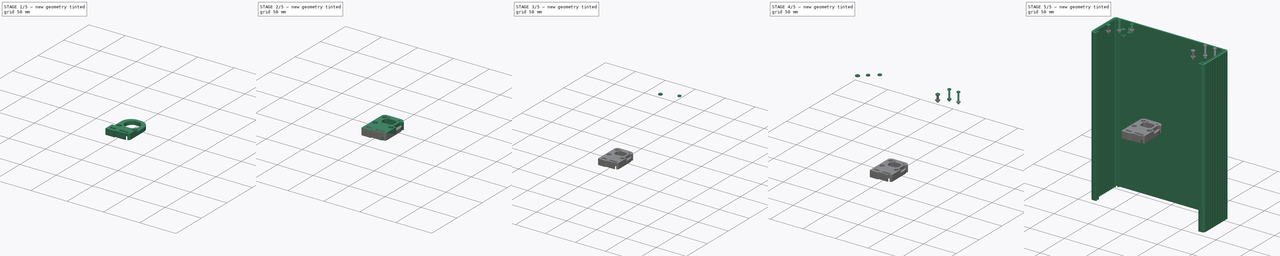
[diagram: build sequence overview — one tinted view per stage of 5, left to right]
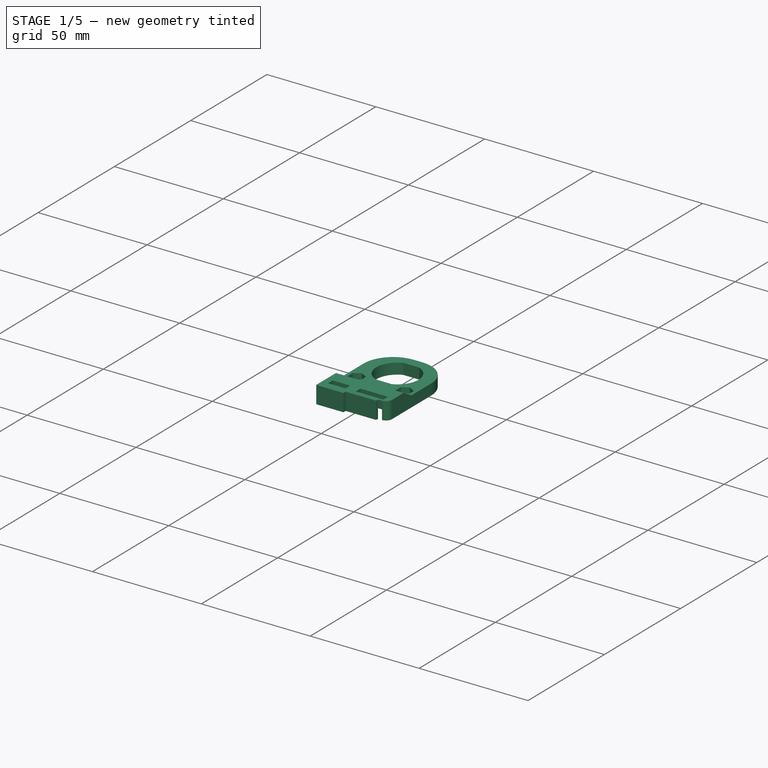
[diagram: stage 1 of 5 — iso view after this stage's code; geometry added in this stage tinted green]
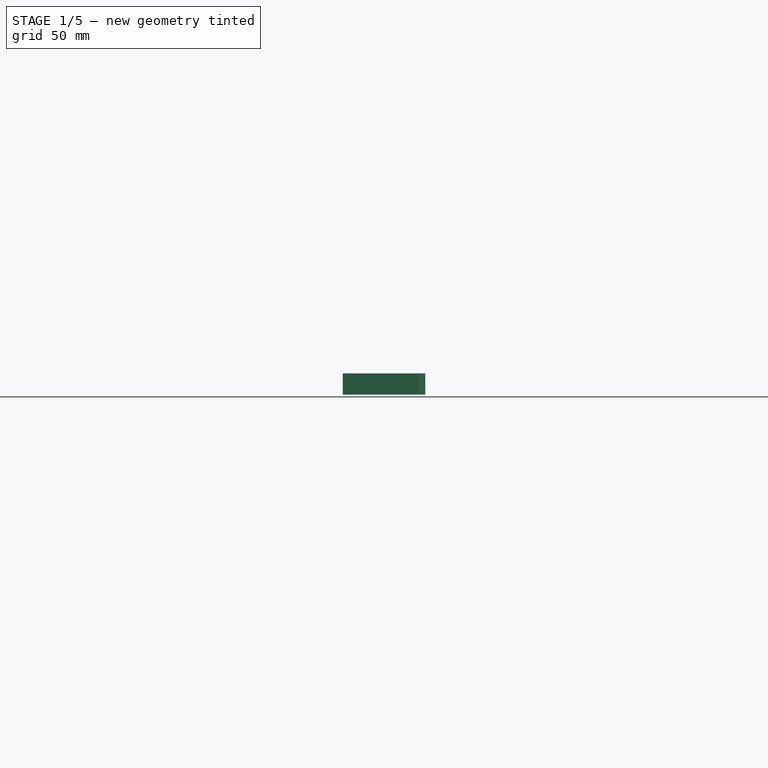
[diagram: stage 1 of 5 — front view after this stage's code; geometry added in this stage tinted green]
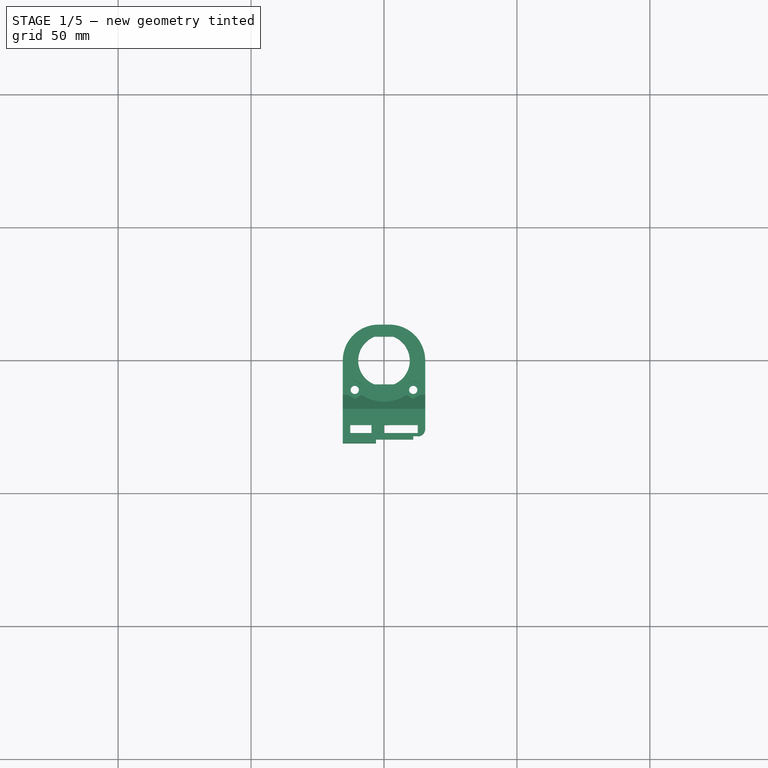
[diagram: stage 1 of 5 — top view after this stage's code; geometry added in this stage tinted green]
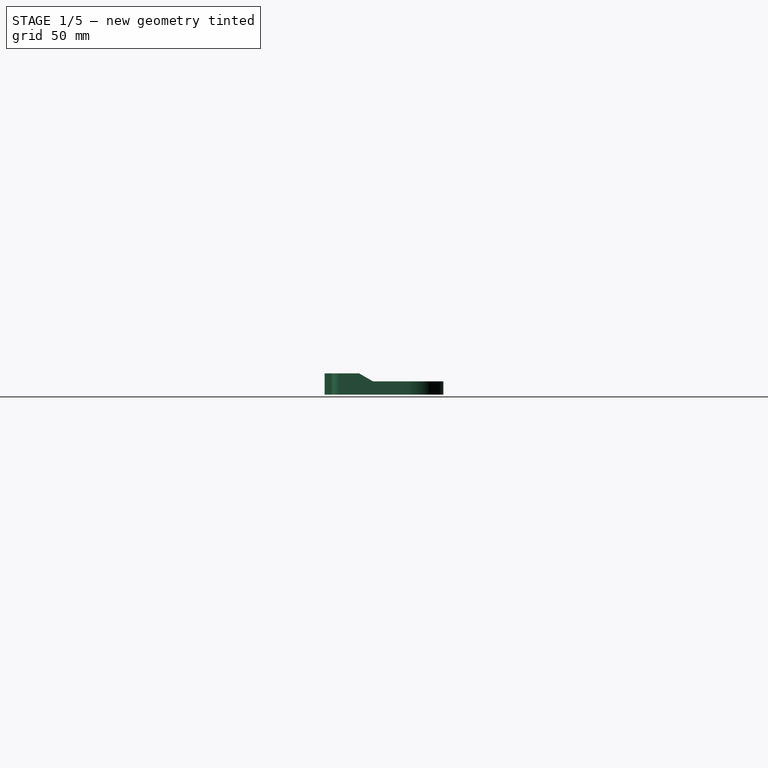
[diagram: stage 1 of 5 — right view after this stage's code; geometry added in this stage tinted green]
FCSTD DOCUMENT  (FreeCAD 0.18.4R)
Label: ss_frontpanel_inner_plate-2nd_rotary_test_asm
License: All rights reserved
LicenseURL: http://en.wikipedia.org/wiki/All_rights_reserved
objects: Part::Feature×41, Sketcher::SketchObject×16, Part::FeaturePython×15, PartDesign::Pocket×12, App::Part×9, PartDesign::Fillet×4, PartDesign::Pad×3, PartDesign::Body×3, App::MeasureDistance×1, PartDesign::CoordinateSystem×1, PartDesign::Draft×1
note: 111 computed .brp shape members not serialized (recipe doc carries the construction recipe); baked Part::Feature solids carry a one-line shape summary decoded from their .brp

FEATURE [PartDesign::Body] Body002  label="3d_holder_left_hybrid_2nd_rotary"
  Group = -> [Sketch014,Pad002,Sketch015,Sketch013,Sketch012,Pocket009,Sketch016,Pocket008,Sketch017,Pocket010,Sketch018,Pocket013,Pocket014,Sketch019,Pocket011,Pocket012,Fillet002,Fillet003]
  Origin = -> Origin018
  Placement = pos=(-62,35,110) rot=(0,1,0;3.14159rad)
  Tip = -> Fillet003
FEATURE [Sketcher::SketchObject] Sketch020
  MapMode = 5
  Support = -> [XY_Plane019]
  sketch-geometry (37):
    g0: ArcOfCircle CenterX=0 CenterY=0 CenterZ=0 NormalX=0 NormalY=0 NormalZ=1 AngleXU=0 Radius=9.7 StartAngle=1.95303 EndAngle=4.33016
    g1: LineSegment StartX=-3.61801 StartY=9 StartZ=0 EndX=3.61801 EndY=9 EndZ=0
    g2: LineSegment StartX=3.61801 StartY=-9 StartZ=0 EndX=-3.61801 EndY=-9 EndZ=0
    g3: ArcOfCircle CenterX=0 CenterY=0 CenterZ=0 NormalX=0 NormalY=0 NormalZ=1 AngleXU=0 Radius=9.7 StartAngle=5.09462 EndAngle=7.47175
    g4: GeomPoint X=0 Y=-22 Z=0
    g5: LineSegment [constr] StartX=-12.7 StartY=-15.65 StartZ=0 EndX=12.7 EndY=-15.65 EndZ=0
    g6: LineSegment [constr] StartX=12.7 StartY=-15.65 StartZ=0 EndX=12.7 EndY=-28.35 EndZ=0
    g7: LineSegment [constr] StartX=12.7 StartY=-28.35 StartZ=0 EndX=-12.7 EndY=-28.35 EndZ=0
    g8: LineSegment [constr] StartX=-12.7 StartY=-28.35 StartZ=0 EndX=-12.7 EndY=-15.65 EndZ=0
    g9: Circle [constr] CenterX=-10.16 CenterY=-25.81 CenterZ=0 NormalX=0 NormalY=0 NormalZ=1 AngleXU=0 Radius=0.5
    g10: Circle [constr] CenterX=2.54 CenterY=-25.81 CenterZ=0 NormalX=0 NormalY=0 NormalZ=1 AngleXU=0 Radius=0.5
    g11: Circle [constr] CenterX=10.16 CenterY=-25.81 CenterZ=0 NormalX=0 NormalY=0 NormalZ=1 AngleXU=0 Radius=0.5
    g12: Circle CenterX=-11 CenterY=-11 CenterZ=0 NormalX=0 NormalY=0 NormalZ=1 AngleXU=0 Radius=1.55
    g13: Circle CenterX=11 CenterY=-11 CenterZ=0 NormalX=0 NormalY=0 NormalZ=1 AngleXU=0 Radius=1.55
    g14: LineSegment StartX=-2 StartY=13.5 StartZ=0 EndX=2 EndY=13.5 EndZ=0
    g15: LineSegment StartX=15.5 StartY=-1.7e-15 StartZ=0 EndX=15.5 EndY=-25.7 EndZ=0
    g16: LineSegment StartX=-15.5 StartY=-31.15 StartZ=0 EndX=-15.5 EndY=0 EndZ=0
    g17: ArcOfCircle CenterX=-2 CenterY=1e-16 CenterZ=0 NormalX=0 NormalY=0 NormalZ=1 AngleXU=0 Radius=13.5 StartAngle=1.5708 EndAngle=3.14159
    g18: ArcOfCircle CenterX=2 CenterY=0 CenterZ=0 NormalX=0 NormalY=0 NormalZ=1 AngleXU=0 Radius=13.5 StartAngle=0 EndAngle=1.5708
    g19: LineSegment StartX=-12.7 StartY=-24.31 StartZ=0 EndX=-4.7 EndY=-24.31 EndZ=0
    g20: LineSegment StartX=-4.7 StartY=-24.31 StartZ=0 EndX=-4.7 EndY=-27.31 EndZ=0
    g21: LineSegment StartX=-4.7 StartY=-27.31 StartZ=0 EndX=-12.7 EndY=-27.31 EndZ=0
    g22: LineSegment StartX=-12.7 StartY=-27.31 StartZ=0 EndX=-12.7 EndY=-24.31 EndZ=0
    g23: LineSegment StartX=8e-16 StartY=-24.31 StartZ=0 EndX=12.7 EndY=-24.31 EndZ=0
    g24: LineSegment StartX=12.7 StartY=-24.31 StartZ=0 EndX=12.7 EndY=-27.31 EndZ=0
    g25: LineSegment StartX=12.7 StartY=-27.31 StartZ=0 EndX=0 EndY=-27.31 EndZ=0
    g26: LineSegment StartX=8e-16 StartY=-27.31 StartZ=0 EndX=8e-16 EndY=-24.31 EndZ=0
    g27: GeomPoint X=6.35 Y=-25.81 Z=0
    g28: LineSegment StartX=11 StartY=-29.7 StartZ=0 EndX=11 EndY=-28.5 EndZ=0
    g29: LineSegment StartX=11 StartY=-28.5 StartZ=0 EndX=12.7 EndY=-28.5 EndZ=0
    g30: Circle [constr] CenterX=-1e-16 CenterY=-30.89 CenterZ=0 NormalX=0 NormalY=0 NormalZ=1 AngleXU=0 Radius=0.5
    g31: Circle [constr] CenterX=2.54 CenterY=-30.89 CenterZ=0 NormalX=0 NormalY=0 NormalZ=1 AngleXU=0 Radius=0.5
    g32: Circle [constr] CenterX=5.08 CenterY=-30.89 CenterZ=0 NormalX=0 NormalY=0 NormalZ=1 AngleXU=0 Radius=0.5
    g33: LineSegment StartX=-3 StartY=-31.15 StartZ=0 EndX=-3 EndY=-29.7 EndZ=0
    g34: LineSegment StartX=-3 StartY=-29.7 StartZ=0 EndX=11 EndY=-29.7 EndZ=0
    g35: LineSegment StartX=-3 StartY=-31.15 StartZ=0 EndX=-15.5 EndY=-31.15 EndZ=0
    g36: ArcOfCircle CenterX=12.7 CenterY=-25.7 CenterZ=0 NormalX=0 NormalY=0 NormalZ=1 AngleXU=0 Radius=2.8 StartAngle=4.71239 EndAngle=6.28319
  constraints (101):
    c: Coincident(g0,g-1)
    c: Diameter(g0) = 19.4
    c: Horizontal(g2)
    c: Coincident(g0,g1)
    c: Coincident(g3,g1)
    c: Symmetric(g0,g3,g-2)
    c: Equal(g1,g2)
    c: Symmetric(g0,g2,g-1)
    c: DistanceY(g2,g3) = 18
    c: PointOnObject(g0,g2)
    c: PointOnObject(g3,g2)
    c: Coincident(g0,g3)
    c: PointOnObject(g4,g-2)
    c: DistanceY(g4,g0) = 22
    c: Coincident(g5,g6)
    c: Coincident(g6,g7)
    c: Coincident(g7,g8)
    c: Coincident(g8,g5)
    c: Horizontal(g5)
    c: Horizontal(g7)
    c: Vertical(g6)
    c: Vertical(g8)
    c: DistanceY(g6,g6) = 12.7
    c: DistanceX(g5,g5) = 25.4
    c: Symmetric(g5,g6,g4)
    c: Horizontal(g11,g10)
    c: Horizontal(g10,g9)
    c: Equal(g11,g10)
    c: Equal(g10,g9)
    c: Diameter(g11) = 1
    c: DistanceX(g4,g10) = 2.54
    c: DistanceX(g9,g4) = 10.16
    c: DistanceX(g10,g11) = 7.62
    c: Equal(g13,g12)
    c: Symmetric(g12,g13,g-2)
    c: DistanceX(g12,g13) = 22
    c: Diameter(g13) = 3.1
    c: DistanceY(g12,g0) = 11
    c: Coincident(g35,g16)
    c: Vertical(g15)
    c: Vertical(g16)
    c: Tangent(g16,g17) = 1.5708
    c: Tangent(g14,g17) = 1.5708
    c: Tangent(g14,g18) = 1.5708
    c: Tangent(g15,g18) = 1.5708
    c: Equal(g17,g18)
    c: Radius(g18) = 13.5
    c: Symmetric(g14,g14,g-2)
    c: DistanceX(g16,g5) = 2.8
    c: DistanceY(g35,g7) = 2.8
    c: Coincident(g19,g20)
    c: Coincident(g20,g21)
    c: Coincident(g21,g22)
    c: Coincident(g22,g19)
    c: Horizontal(g19)
    c: Horizontal(g21)
    c: Vertical(g20)
    c: Vertical(g22)
    c: Coincident(g23,g24)
    c: Coincident(g24,g25)
    c: Coincident(g25,g26)
    c: Coincident(g26,g23)
    c: Horizontal(g23)
    c: Horizontal(g25)
    c: Vertical(g24)
    c: Vertical(g26)
    c: Equal(g20,g26)
    c: DistanceY(g22,g22) = 3
    c: DistanceX(g21,g21) = 8
    c: DistanceX(g25,g25) = 12.7
    c: DistanceX(g19,g9) = 2.54
    c: Symmetric(g10,g11,g27)
    c: DistanceY(g10,g4) = 3.81
    c: Horizontal(g19,g23)
    c: Symmetric(g23,g24,g27)
    c: Horizontal(g18,g0)
    c: Vertical(g28)
    c: Coincident(g28,g29)
    c: Horizontal(g29)
    c: Equal(g32,g31)
    c: Equal(g31,g30)
    c: Horizontal(g32,g31)
    c: Horizontal(g31,g30)
    c: Diameter(g30) = 1
    c: Vertical(g31,g10)
    c: DistanceX(g31,g32) = 2.54
    c: DistanceX(g30,g31) = 2.54
    c: DistanceY(g30,g10) = 5.08
    c: Vertical(g33)
    c: Coincident(g33,g34)
    c: Horizontal(g34)
    c: Coincident(g28,g34)
    c: DistanceX(g35,g35) = 12.5
    c: DistanceY(g33,g7) = 1.35
    c: DistanceY(g28,g28) = 1.2
    c: DistanceX(g34,g34) = 14
    c: Tangent(g15,g36) = 1.5708
    c: Tangent(g29,g36) = -1.5708
    c: Vertical(g29,g6)
    c: Horizontal(g35)
    c: Coincident(g33,g35)
FEATURE [PartDesign::Pad] Pad003
  Length = 8
  Length2 = 100
  Profile = -> Sketch020
  Type = 0
FEATURE [Sketcher::SketchObject] Sketch003
  MapMode = 5
  Placement = pos=(0,0,8) rot=(0,0,1;0rad)
  Support = -> [Pad003]
  sketch-geometry (9):
    g0: GeomPoint X=0 Y=-22 Z=0
    g1: LineSegment [constr] StartX=-12.7 StartY=-15.65 StartZ=0 EndX=12.7 EndY=-15.65 EndZ=0
    g2: LineSegment [constr] StartX=12.7 StartY=-15.65 StartZ=0 EndX=12.7 EndY=-28.35 EndZ=0
    g3: LineSegment [constr] StartX=12.7 StartY=-28.35 StartZ=0 EndX=-12.7 EndY=-28.35 EndZ=0
    g4: LineSegment [constr] StartX=-12.7 StartY=-28.35 StartZ=0 EndX=-12.7 EndY=-15.65 EndZ=0
    g5: LineSegment StartX=-15.5 StartY=-13 StartZ=0 EndX=15.5 EndY=-13 EndZ=0
    g6: LineSegment StartX=15.5 StartY=-13 StartZ=0 EndX=15.5 EndY=13.5 EndZ=0
    g7: LineSegment StartX=15.5 StartY=13.5 StartZ=0 EndX=-15.5 EndY=13.5 EndZ=0
    g8: LineSegment StartX=-15.5 StartY=13.5 StartZ=0 EndX=-15.5 EndY=-13 EndZ=0
  constraints (24):
    c: PointOnObject(g0,g-2)
    c: DistanceY(g0,g-1) = 22
    c: Coincident(g1,g2)
    c: Coincident(g2,g3)
    c: Coincident(g3,g4)
    c: Coincident(g4,g1)
    c: Horizontal(g1)
    c: Horizontal(g3)
    c: Vertical(g2)
    c: Vertical(g4)
    c: DistanceY(g2,g2) = 12.7
    c: DistanceX(g3,g3) = 25.4
    c: Symmetric(g1,g2,g0)
    c: Coincident(g5,g6)
    c: Coincident(g6,g7)
    c: Coincident(g7,g8)
    c: Coincident(g8,g5)
    c: Horizontal(g7)
    c: Vertical(g6)
    c: Vertical(g8)
    c: DistanceX(g5,g5) = 31
    c: Symmetric(g5,g5,g-2)
    c: DistanceY(g5,g-1) = 13
    c: DistanceY(g-1,g6) = 13.5
FEATURE [PartDesign::Pocket] Pocket
  BaseFeature = -> Pad003
  Length = 3
  Length2 = 100
  Profile = -> Sketch003
  Type = 0
FEATURE [PartDesign::Draft] Draft
  Angle = 60
  Base = -> Pocket [Face9]
  BaseFeature = -> Pocket
  NeutralPlane = -> Pocket [Face8]
FEATURE [Sketcher::SketchObject] Sketch001
  MapMode = 5
  Placement = pos=(0,0,5) rot=(0,0,1;0rad)
  Support = -> [Pocket]
  sketch-geometry (14):
    g0: LineSegment StartX=-8 StartY=-12.7321 StartZ=0 EndX=-8 EndY=-9.26795 EndZ=0
    g1: LineSegment StartX=-8 StartY=-9.26795 StartZ=0 EndX=-11 EndY=-7.5359 EndZ=0
    g2: LineSegment StartX=-11 StartY=-7.5359 StartZ=0 EndX=-14 EndY=-9.26795 EndZ=0
    g3: LineSegment StartX=-14 StartY=-9.26795 StartZ=0 EndX=-14 EndY=-12.7321 EndZ=0
    g4: LineSegment StartX=-14 StartY=-12.7321 StartZ=0 EndX=-11 EndY=-14.4641 EndZ=0
    g5: LineSegment StartX=-11 StartY=-14.4641 StartZ=0 EndX=-8 EndY=-12.7321 EndZ=0
    g6: Circle [constr] CenterX=-11 CenterY=-11 CenterZ=0 NormalX=0 NormalY=0 NormalZ=1 AngleXU=0 Radius=3.4641
    g7: LineSegment StartX=14 StartY=-12.7321 StartZ=0 EndX=14 EndY=-9.26795 EndZ=0
    g8: LineSegment StartX=14 StartY=-9.26795 StartZ=0 EndX=11 EndY=-7.5359 EndZ=0
    g9: LineSegment StartX=11 StartY=-7.5359 StartZ=0 EndX=8 EndY=-9.26795 EndZ=0
    g10: LineSegment StartX=8 StartY=-9.26795 StartZ=0 EndX=8 EndY=-12.7321 EndZ=0
    g11: LineSegment StartX=8 StartY=-12.7321 StartZ=0 EndX=11 EndY=-14.4641 EndZ=0
    g12: LineSegment StartX=11 StartY=-14.4641 StartZ=0 EndX=14 EndY=-12.7321 EndZ=0
    g13: Circle [constr] CenterX=11 CenterY=-11 CenterZ=0 NormalX=0 NormalY=0 NormalZ=1 AngleXU=0 Radius=3.4641
  constraints (33):
    c: Coincident(g0,g1)
    c: Coincident(g1,g2)
    c: Coincident(g2,g3)
    c: Coincident(g3,g4)
    c: Coincident(g4,g5)
    c: Coincident(g5,g0)
    c: Equal(g0, g1-g5) x5
    c: PointOnObject(g0,g6)
    c: PointOnObject(g1,g6)
    c: PointOnObject(g2,g6)
    c: PointOnObject(g3,g6)
    c: PointOnObject(g4,g6)
    c: PointOnObject(g5,g6)
    c: Coincident(g7,g8)
    c: Coincident(g8,g9)
    c: Coincident(g9,g10)
    c: Coincident(g10,g11)
    c: Coincident(g11,g12)
    c: Coincident(g12,g7)
    c: Equal(g7, g8-g12) x5
    c: PointOnObject(g7,g13)
    c: PointOnObject(g8,g13)
    c: PointOnObject(g9,g13)
    c: PointOnObject(g10,g13)
    c: PointOnObject(g11,g13)
    c: PointOnObject(g12,g13)
    c: DistanceX(g6,g13) = 22
    c: Symmetric(g6,g13,g-2)
    c: DistanceY(g13,g-1) = 11
    c: DistanceX(g3,g0) = 6
    c: DistanceX(g10,g7) = 6
    c: Vertical(g3)
    c: Vertical(g7)
FEATURE [PartDesign::Pocket] Pocket001
  BaseFeature = -> Draft
  Length = 5.2
  Length2 = 100
  Midplane = true
  Profile = -> Sketch001
  Type = 0
FEATURE [Sketcher::SketchObject] Sketch004
  MapMode = 5
  Placement = pos=(0,0,5) rot=(0,0,1;0rad)
  Support = -> [Pocket001]
  sketch-geometry (1):
    g0: Circle CenterX=0 CenterY=0 CenterZ=0 NormalX=0 NormalY=0 NormalZ=1 AngleXU=0 Radius=15.5
  constraints (2):
    c: Coincident(g0,g-1)
    c: Diameter(g0) = 31
FEATURE [PartDesign::Pocket] Pocket002
  BaseFeature = -> Pocket001
  Length = 3
  Length2 = 100
  Profile = -> Sketch004
  Reversed = true
  Type = 0
FEATURE [Sketcher::SketchObject] Sketch005
  MapMode = 5
  Placement = pos=(0,0,0) rot=(1,0,0;3.14159rad)
  Support = -> [Pocket002]
  sketch-geometry (5):
    g0: GeomPoint X=0 Y=22 Z=0
    g1: LineSegment StartX=12.85 StartY=15.5 StartZ=0 EndX=-12.85 EndY=15.5 EndZ=0
    g2: LineSegment StartX=-12.85 StartY=15.5 StartZ=0 EndX=-12.85 EndY=28.5 EndZ=0
    g3: LineSegment StartX=-12.85 StartY=28.5 StartZ=0 EndX=12.85 EndY=28.5 EndZ=0
    g4: LineSegment StartX=12.85 StartY=28.5 StartZ=0 EndX=12.85 EndY=15.5 EndZ=0
  constraints (13):
    c: PointOnObject(g0,g-2)
    c: DistanceY(g-1,g0) = 22
    c: Coincident(g1,g2)
    c: Coincident(g2,g3)
    c: Coincident(g3,g4)
    c: Coincident(g4,g1)
    c: Horizontal(g1)
    c: Horizontal(g3)
    c: Vertical(g2)
    c: Vertical(g4)
    c: DistanceY(g2,g2) = 13
    c: DistanceX(g3,g3) = 25.7
    c: Symmetric(g1,g2,g0)
FEATURE [PartDesign::Pocket] Pocket003
  BaseFeature = -> Pocket002
  Length = 3
  Length2 = 100
  Profile = -> Sketch005
  Type = 0
FEATURE [Sketcher::SketchObject] Sketch006
  MapMode = 5
  Placement = pos=(0,0,3) rot=(1,0,0;3.14159rad)
  Support = -> [Pocket003]
  sketch-geometry (35):
    g0: GeomPoint X=0 Y=22 Z=0
    g1: LineSegment [constr] StartX=12.85 StartY=15.5 StartZ=0 EndX=-12.85 EndY=15.5 EndZ=0
    g2: LineSegment [constr] StartX=-12.85 StartY=15.5 StartZ=0 EndX=-12.85 EndY=28.5 EndZ=0
    g3: LineSegment [constr] StartX=-12.85 StartY=28.5 StartZ=0 EndX=12.85 EndY=28.5 EndZ=0
    g4: LineSegment [constr] StartX=12.85 StartY=28.5 StartZ=0 EndX=12.85 EndY=15.5 EndZ=0
    g5: LineSegment [constr] StartX=12.85 StartY=20.5 StartZ=0 EndX=-12.85 EndY=20.5 EndZ=0
    g6: LineSegment [constr] StartX=-12.85 StartY=20.5 StartZ=0 EndX=-12.85 EndY=23.5 EndZ=0
    g7: LineSegment [constr] StartX=-12.85 StartY=23.5 StartZ=0 EndX=12.85 EndY=23.5 EndZ=0
    g8: LineSegment [constr] StartX=12.85 StartY=23.5 StartZ=0 EndX=12.85 EndY=20.5 EndZ=0
    g9: LineSegment [constr] StartX=1.5 StartY=15.5 StartZ=0 EndX=-1.5 EndY=15.5 EndZ=0
    g10: LineSegment [constr] StartX=-1.5 StartY=15.5 StartZ=0 EndX=-1.5 EndY=28.5 EndZ=0
    g11: LineSegment [constr] StartX=-1.5 StartY=28.5 StartZ=0 EndX=1.5 EndY=28.5 EndZ=0
    g12: LineSegment [constr] StartX=1.5 StartY=28.5 StartZ=0 EndX=1.5 EndY=15.5 EndZ=0
    g13: GeomPoint X=12.85 Y=22 Z=0
    g14: Circle CenterX=0 CenterY=22 CenterZ=0 NormalX=0 NormalY=0 NormalZ=1 AngleXU=0 Radius=1.8
    g15: LineSegment StartX=-12.85 StartY=20.5 StartZ=0 EndX=-3.5 EndY=20.5 EndZ=0
    g16: LineSegment StartX=-1.5 StartY=18.5 StartZ=0 EndX=-1.5 EndY=15.5 EndZ=0
    g17: LineSegment StartX=-1.5 StartY=15.5 StartZ=0 EndX=-12.85 EndY=15.5 EndZ=0
    g18: LineSegment StartX=-12.85 StartY=15.5 StartZ=0 EndX=-12.85 EndY=20.5 EndZ=0
    g19: LineSegment StartX=1.5 StartY=15.5 StartZ=0 EndX=12.85 EndY=15.5 EndZ=0
    g20: LineSegment StartX=12.85 StartY=15.5 StartZ=0 EndX=12.85 EndY=20.5 EndZ=0
    g21: LineSegment StartX=12.85 StartY=20.5 StartZ=0 EndX=3.5 EndY=20.5 EndZ=0
    g22: LineSegment StartX=1.5 StartY=18.5 StartZ=0 EndX=1.5 EndY=15.5 EndZ=0
    g23: LineSegment StartX=-12.85 StartY=23.5 StartZ=0 EndX=-3.5 EndY=23.5 EndZ=0
    g24: LineSegment StartX=-1.5 StartY=25.5 StartZ=0 EndX=-1.5 EndY=28.5 EndZ=0
    g25: LineSegment StartX=-1.5 StartY=28.5 StartZ=0 EndX=-12.85 EndY=28.5 EndZ=0
    g26: LineSegment StartX=-12.85 StartY=28.5 StartZ=0 EndX=-12.85 EndY=23.5 EndZ=0
    g27: LineSegment StartX=1.5 StartY=28.5 StartZ=0 EndX=12.85 EndY=28.5 EndZ=0
    g28: LineSegment StartX=12.85 StartY=28.5 StartZ=0 EndX=12.85 EndY=23.5 EndZ=0
    g29: LineSegment StartX=12.85 StartY=23.5 StartZ=0 EndX=3.5 EndY=23.5 EndZ=0
    g30: LineSegment StartX=1.5 StartY=25.5 StartZ=0 EndX=1.5 EndY=28.5 EndZ=0
    g31: ArcOfCircle CenterX=3.5 CenterY=25.5 CenterZ=0 NormalX=0 NormalY=0 NormalZ=1 AngleXU=0 Radius=2 StartAngle=3.14159 EndAngle=4.71239
    g32: ArcOfCircle CenterX=3.5 CenterY=18.5 CenterZ=0 NormalX=0 NormalY=0 NormalZ=1 AngleXU=0 Radius=2 StartAngle=1.5708 EndAngle=3.14159
    g33: ArcOfCircle CenterX=-3.5 CenterY=18.5 CenterZ=0 NormalX=0 NormalY=0 NormalZ=1 AngleXU=0 Radius=2 StartAngle=6e-16 EndAngle=1.5708
    g34: ArcOfCircle CenterX=-3.5 CenterY=25.5 CenterZ=0 NormalX=0 NormalY=0 NormalZ=1 AngleXU=0 Radius=2 StartAngle=4.71239 EndAngle=6.28319
  constraints (87):
    c: PointOnObject(g0,g-2)
    c: DistanceY(g-1,g0) = 22
    c: Coincident(g1,g2)
    c: Coincident(g2,g3)
    c: Coincident(g3,g4)
    c: Coincident(g4,g1)
    c: Horizontal(g1)
    c: Horizontal(g3)
    c: Vertical(g2)
    c: Vertical(g4)
    c: DistanceY(g2,g2) = 13
    c: DistanceX(g1,g1) = 25.7
    c: Symmetric(g1,g2,g0)
    c: Coincident(g5,g6)
    c: Coincident(g6,g7)
    c: Coincident(g7,g8)
    c: Coincident(g8,g5)
    c: Horizontal(g5)
    c: Horizontal(g7)
    c: Vertical(g6)
    c: Vertical(g8)
    c: PointOnObject(g5,g4)
    c: PointOnObject(g6,g2)
    c: Coincident(g9,g10)
    c: Coincident(g10,g11)
    c: Coincident(g11,g12)
    c: Coincident(g12,g9)
    c: Horizontal(g11)
    c: Vertical(g10)
    c: Vertical(g12)
    c: PointOnObject(g9,g1)
    c: PointOnObject(g10,g3)
    c: DistanceY(g5,g7) = 3
    c: DistanceX(g9,g9) = 3
    c: Symmetric(g9,g9,g-2)
    c: Symmetric(g5,g7,g13)
    c: Horizontal(g13,g0)
    c: Coincident(g14,g0)
    c: Diameter(g14) = 3.6
    c: Coincident(g16,g17)
    c: Coincident(g17,g18)
    c: Coincident(g18,g15)
    c: Horizontal(g15)
    c: Horizontal(g17)
    c: Vertical(g16)
    c: Vertical(g18)
    c: Coincident(g15,g5)
    c: Coincident(g16,g9)
    c: Coincident(g19,g20)
    c: Coincident(g20,g21)
    c: Coincident(g22,g19)
    c: Horizontal(g19)
    c: Horizontal(g21)
    c: Vertical(g20)
    c: Vertical(g22)
    c: Coincident(g19,g9)
    c: Coincident(g20,g5)
    c: Coincident(g24,g25)
    c: Coincident(g25,g26)
    c: Coincident(g26,g23)
    c: Horizontal(g23)
    c: Horizontal(g25)
    c: Vertical(g24)
    c: Vertical(g26)
    c: Coincident(g23,g6)
    c: Coincident(g24,g10)
    c: Coincident(g27,g28)
    c: Coincident(g28,g29)
    c: Coincident(g30,g27)
    c: Horizontal(g27)
    c: Horizontal(g29)
    c: Vertical(g28)
    c: Vertical(g30)
    c: Coincident(g27,g11)
    c: Coincident(g28,g7)
    c: Tangent(g30,g31) = 1.5708
    c: Tangent(g29,g31) = 1.5708
    c: Tangent(g21,g32) = -1.5708
    c: Tangent(g22,g32) = -1.5708
    c: Tangent(g16,g33) = 1.5708
    c: Tangent(g15,g33) = 1.5708
    c: Tangent(g23,g34) = -1.5708
    c: Tangent(g24,g34) = -1.5708
    c: Equal(g34,g31)
    c: Equal(g31,g32)
    c: Equal(g32,g33)
    c: Radius(g31) = 2
FEATURE [PartDesign::Pocket] Pocket004
  BaseFeature = -> Pocket003
  Length = 1.4
  Length2 = 100
  Profile = -> Sketch006
  Type = 0
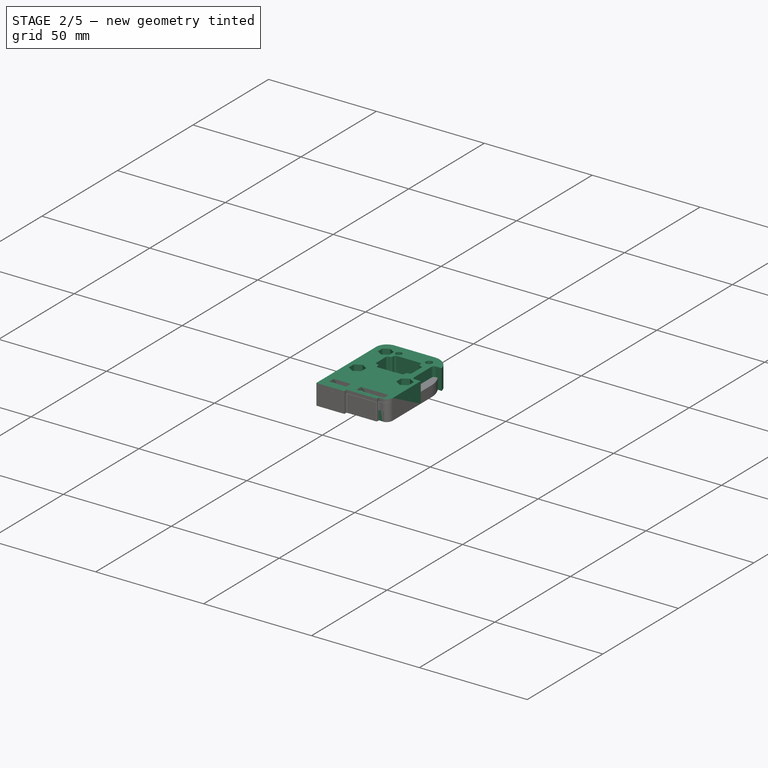
[diagram: stage 2 of 5 — iso view after this stage's code; geometry added in this stage tinted green]
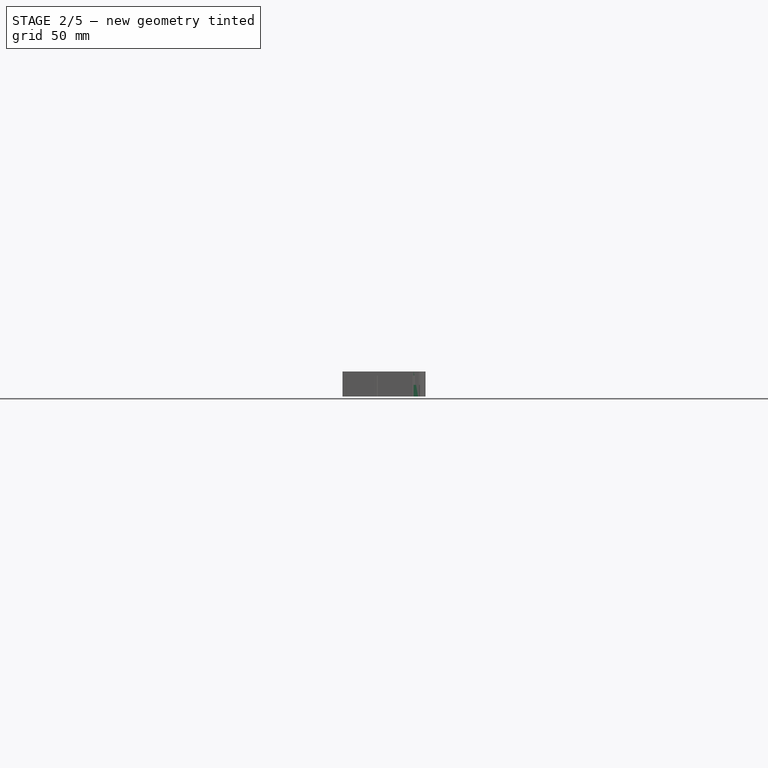
[diagram: stage 2 of 5 — front view after this stage's code; geometry added in this stage tinted green]
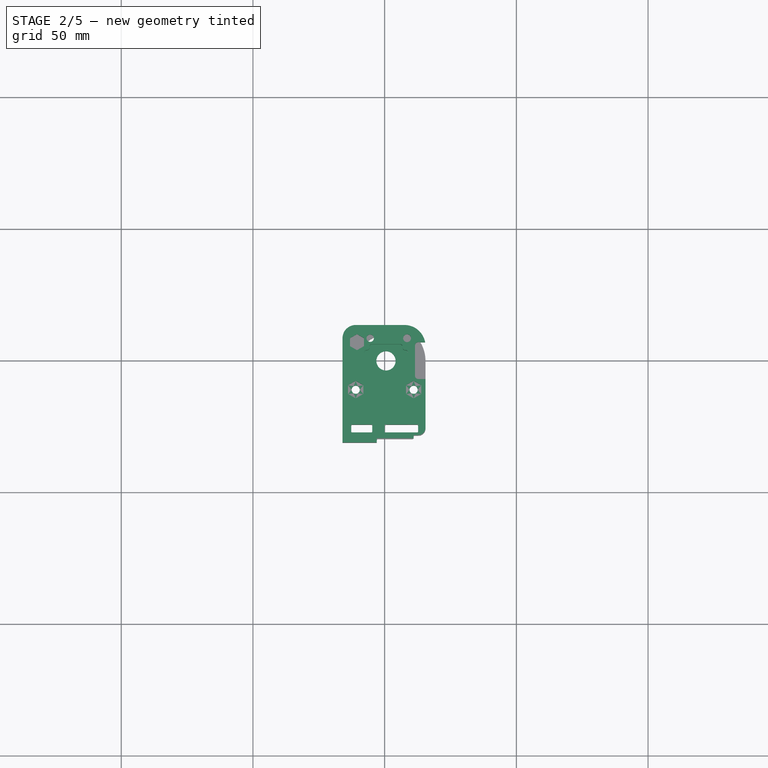
[diagram: stage 2 of 5 — top view after this stage's code; geometry added in this stage tinted green]
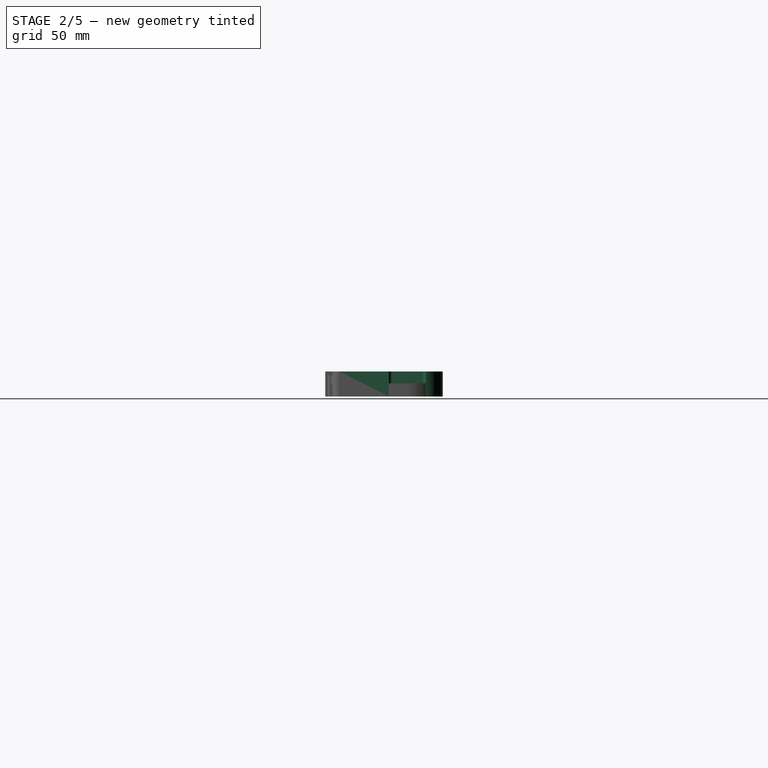
[diagram: stage 2 of 5 — right view after this stage's code; geometry added in this stage tinted green]
FEATURE [Sketcher::SketchObject] Sketch014
  MapMode = 5
  Support = -> [XY_Plane018]
  sketch-geometry (37):
    g0: GeomPoint X=0 Y=-21.98 Z=0
    g1: LineSegment [constr] StartX=-12.7 StartY=-15.63 StartZ=0 EndX=12.7 EndY=-15.63 EndZ=0
    g2: LineSegment [constr] StartX=12.7 StartY=-15.63 StartZ=0 EndX=12.7 EndY=-28.33 EndZ=0
    g3: LineSegment [constr] StartX=12.7 StartY=-28.33 StartZ=0 EndX=-12.7 EndY=-28.33 EndZ=0
    g4: LineSegment [constr] StartX=-12.7 StartY=-28.33 StartZ=0 EndX=-12.7 EndY=-15.63 EndZ=0
    g5: Circle [constr] CenterX=-10.16 CenterY=-25.79 CenterZ=0 NormalX=0 NormalY=0 NormalZ=1 AngleXU=0 Radius=0.5
    g6: Circle [constr] CenterX=2.54 CenterY=-25.79 CenterZ=0 NormalX=0 NormalY=0 NormalZ=1 AngleXU=0 Radius=0.5
    g7: Circle [constr] CenterX=10.16 CenterY=-25.79 CenterZ=0 NormalX=0 NormalY=0 NormalZ=1 AngleXU=0 Radius=0.5
    g8: Circle CenterX=-11 CenterY=-11 CenterZ=0 NormalX=0 NormalY=0 NormalZ=1 AngleXU=0 Radius=1.55
    g9: Circle CenterX=11 CenterY=-11 CenterZ=0 NormalX=0 NormalY=0 NormalZ=1 AngleXU=0 Radius=1.55
    g10: LineSegment StartX=-11 StartY=13.5 StartZ=0 EndX=7.5 EndY=13.5 EndZ=0
    g11: LineSegment StartX=15.5 StartY=5.5 StartZ=0 EndX=15.5 EndY=-25.53 EndZ=0
    g12: LineSegment StartX=-16 StartY=-31.13 StartZ=0 EndX=-16 EndY=8.5 EndZ=0
    g13: ArcOfCircle CenterX=-11 CenterY=8.5 CenterZ=0 NormalX=0 NormalY=0 NormalZ=1 AngleXU=0 Radius=5 StartAngle=1.5708 EndAngle=3.14159
    g14: ArcOfCircle CenterX=7.5 CenterY=5.5 CenterZ=0 NormalX=0 NormalY=0 NormalZ=1 AngleXU=0 Radius=8 StartAngle=0 EndAngle=1.5708
    g15: LineSegment StartX=-12.7 StartY=-24.29 StartZ=0 EndX=-4.7 EndY=-24.29 EndZ=0
    g16: LineSegment StartX=-4.7 StartY=-24.29 StartZ=0 EndX=-4.7 EndY=-27.29 EndZ=0
    g17: LineSegment StartX=-4.7 StartY=-27.29 StartZ=0 EndX=-12.7 EndY=-27.29 EndZ=0
    g18: LineSegment StartX=-12.7 StartY=-27.29 StartZ=0 EndX=-12.7 EndY=-24.29 EndZ=0
    g19: LineSegment StartX=1.5e-15 StartY=-24.29 StartZ=0 EndX=12.7 EndY=-24.29 EndZ=0
    g20: LineSegment StartX=12.7 StartY=-24.29 StartZ=0 EndX=12.7 EndY=-27.29 EndZ=0
    g21: LineSegment StartX=12.7 StartY=-27.29 StartZ=0 EndX=1.8e-15 EndY=-27.29 EndZ=0
    g22: LineSegment StartX=1.5e-15 StartY=-27.29 StartZ=0 EndX=1.5e-15 EndY=-24.29 EndZ=0
    g23: GeomPoint X=6.35 Y=-25.79 Z=0
    g24: LineSegment StartX=11 StartY=-29.53 StartZ=0 EndX=11 EndY=-28.33 EndZ=0
    g25: LineSegment StartX=11 StartY=-28.33 StartZ=0 EndX=12.7 EndY=-28.33 EndZ=0
    g26: Circle [constr] CenterX=-1e-16 CenterY=-30.87 CenterZ=0 NormalX=0 NormalY=0 NormalZ=1 AngleXU=0 Radius=0.5
    g27: Circle [constr] CenterX=2.54 CenterY=-30.87 CenterZ=0 NormalX=0 NormalY=0 NormalZ=1 AngleXU=0 Radius=0.5
    g28: Circle [constr] CenterX=5.08 CenterY=-30.87 CenterZ=0 NormalX=0 NormalY=0 NormalZ=1 AngleXU=0 Radius=0.5
    g29: LineSegment StartX=-3 StartY=-31.13 StartZ=0 EndX=-3 EndY=-29.53 EndZ=0
    g30: LineSegment StartX=-3 StartY=-29.53 StartZ=0 EndX=11 EndY=-29.53 EndZ=0
    g31: LineSegment StartX=-3 StartY=-31.13 StartZ=0 EndX=-16 EndY=-31.13 EndZ=0
    g32: ArcOfCircle CenterX=12.7 CenterY=-25.53 CenterZ=0 NormalX=0 NormalY=0 NormalZ=1 AngleXU=0 Radius=2.8 StartAngle=4.71239 EndAngle=6.28319
    g33: Circle CenterX=8.5 CenterY=8.5 CenterZ=0 NormalX=0 NormalY=0 NormalZ=1 AngleXU=0 Radius=1.5
    g34: Circle CenterX=-10.5 CenterY=7 CenterZ=0 NormalX=0 NormalY=0 NormalZ=1 AngleXU=0 Radius=1.5
    g35: Circle CenterX=0.5 CenterY=0 CenterZ=0 NormalX=0 NormalY=0 NormalZ=1 AngleXU=0 Radius=3.65
    g36: Circle CenterX=-5.5 CenterY=8.5 CenterZ=0 NormalX=0 NormalY=0 NormalZ=1 AngleXU=0 Radius=1.4
  constraints (102):
    c: PointOnObject(g0,g-2)
    c: Coincident(g1,g2)
    c: Coincident(g2,g3)
    c: Coincident(g3,g4)
    c: Coincident(g4,g1)
    c: Horizontal(g1)
    c: Horizontal(g3)
    c: Vertical(g2)
    c: Vertical(g4)
    c: DistanceY(g2,g2) = 12.7
    c: DistanceX(g1,g1) = 25.4
    c: Symmetric(g1,g2,g0)
    c: Horizontal(g7,g6)
    c: Horizontal(g6,g5)
    c: Equal(g7,g6)
    c: Equal(g6,g5)
    c: Diameter(g7) = 1
    c: DistanceX(g0,g6) = 2.54
    c: DistanceX(g5,g0) = 10.16
    c: DistanceX(g6,g7) = 7.62
    c: Equal(g9,g8)
    c: Symmetric(g8,g9,g-2)
    c: DistanceX(g8,g9) = 22
    c: Diameter(g9) = 3.1
    c: Coincident(g31,g12)
    c: Vertical(g11)
    c: Vertical(g12)
    c: Tangent(g12,g13) = 1.5708
    c: Tangent(g10,g13) = 1.5708
    c: Tangent(g10,g14) = 1.5708
    c: Tangent(g11,g14) = 1.5708
    c: Radius(g14) = 8
    c: DistanceX(g12,g1) = 3.3
    c: DistanceY(g31,g3) = 2.8
    c: Coincident(g15,g16)
    c: Coincident(g16,g17)
    c: Coincident(g17,g18)
    c: Coincident(g18,g15)
    c: Horizontal(g15)
    c: Horizontal(g17)
    c: Vertical(g16)
    c: Vertical(g18)
    c: Coincident(g19,g20)
    c: Coincident(g20,g21)
    c: Coincident(g21,g22)
    c: Coincident(g22,g19)
    c: Horizontal(g19)
    c: Horizontal(g21)
    c: Vertical(g20)
    c: Vertical(g22)
    c: Equal(g16,g22)
    c: DistanceY(g18,g18) = 3
    c: DistanceX(g17,g17) = 8
    c: DistanceX(g21,g21) = 12.7
    c: DistanceX(g15,g5) = 2.54
    c: Symmetric(g6,g7,g23)
    c: DistanceY(g6,g0) = 3.81
    c: Horizontal(g15,g19)
    c: Symmetric(g19,g20,g23)
    c: Vertical(g24)
    c: Coincident(g24,g25)
    c: Horizontal(g25)
    c: Equal(g28,g27)
    c: Equal(g27,g26)
    c: Horizontal(g28,g27)
    c: Horizontal(g27,g26)
    c: Diameter(g26) = 1
    c: Vertical(g27,g6)
    c: DistanceX(g27,g28) = 2.54
    c: DistanceX(g26,g27) = 2.54
    c: DistanceY(g26,g6) = 5.08
    c: Vertical(g29)
    c: Coincident(g29,g30)
    c: Horizontal(g30)
    c: Coincident(g24,g30)
    c: DistanceX(g31,g31) = 13
    c: DistanceY(g29,g3) = 1.2
    c: DistanceY(g24,g24) = 1.2
    c: DistanceX(g30,g30) = 14
    c: Tangent(g11,g32) = 1.5708
    c: Tangent(g25,g32) = -1.5708
    c: Vertical(g25,g2)
    c: Horizontal(g31)
    c: Coincident(g29,g31)
    c: DistanceX(g1,g11) = 2.8
    c: Radius(g13) = 5
    c: DistanceY(g8,g-1) = 11
    c: DistanceY(g29,g-1) = 31.13
    c: Horizontal(g10)
    c: Diameter(g33) = 3
    c: DistanceX(g-1,g33) = 8.5
    c: DistanceY(g-1,g33) = 8.5
    c: Diameter(g34) = 3
    c: DistanceX(g34,g-1) = 10.5
    c: DistanceY(g-1,g34) = 7
    c: PointOnObject(g35,g-1)
    c: DistanceX(g-1,g35) = 0.5
    c: Diameter(g35) = 7.3
    c: Diameter(g36) = 2.8
    c: DistanceY(g-1,g36) = 8.5
    c: DistanceX(g36,g33) = 14
    c: DistanceY(g-1,g14) = 5.5
FEATURE [PartDesign::Pad] Pad002
  Length = 9.5
  Length2 = 100
  Profile = -> Sketch014
  Type = 0
FEATURE [Sketcher::SketchObject] Sketch012  label="Sketch_rotary_7mm_pocket001"
  MapMode = 5
  Placement = pos=(0,0,9.5) rot=(0,0,1;0rad)
  Support = -> [Pad002]
  sketch-geometry (25):
    g0: LineSegment StartX=7.85 StartY=-4 StartZ=0 EndX=7.75 EndY=-4 EndZ=0
    g1: LineSegment StartX=-7.75 StartY=-3.1 StartZ=0 EndX=-7.75 EndY=3.1 EndZ=0
    g2: LineSegment StartX=-6.85 StartY=4 StartZ=0 EndX=-6.75 EndY=4 EndZ=0
    g3: LineSegment StartX=8.75 StartY=3.1 StartZ=0 EndX=8.75 EndY=-3.1 EndZ=0
    g4: LineSegment StartX=-4.85 StartY=6.25 StartZ=0 EndX=5.85 EndY=6.25 EndZ=0
    g5: LineSegment StartX=6.75 StartY=5.35 StartZ=0 EndX=6.75 EndY=5 EndZ=0
    g6: LineSegment StartX=5.85 StartY=-6.25 StartZ=0 EndX=-4.85 EndY=-6.25 EndZ=0
    g7: LineSegment StartX=-5.75 StartY=-5.35 StartZ=0 EndX=-5.75 EndY=-5 EndZ=0
    g8: LineSegment StartX=7.75 StartY=4 StartZ=0 EndX=7.85 EndY=4 EndZ=0
    g9: LineSegment StartX=-6.75 StartY=-4 StartZ=0 EndX=-6.85 EndY=-4 EndZ=0
    g10: LineSegment StartX=-5.75 StartY=5 StartZ=0 EndX=-5.75 EndY=5.35 EndZ=0
    g11: LineSegment StartX=6.75 StartY=-5 StartZ=0 EndX=6.75 EndY=-5.35 EndZ=0
    g12: GeomPoint X=0.5 Y=0 Z=0
    g13: ArcOfCircle CenterX=-6.75 CenterY=-5 CenterZ=0 NormalX=0 NormalY=0 NormalZ=1 AngleXU=0 Radius=1 StartAngle=4e-16 EndAngle=1.5708
    g14: ArcOfCircle CenterX=7.75 CenterY=-5 CenterZ=0 NormalX=0 NormalY=0 NormalZ=1 AngleXU=0 Radius=1 StartAngle=1.5708 EndAngle=3.14159
    g15: ArcOfCircle CenterX=7.75 CenterY=5 CenterZ=0 NormalX=0 NormalY=0 NormalZ=1 AngleXU=0 Radius=1 StartAngle=3.14159 EndAngle=4.71239
    g16: ArcOfCircle CenterX=-6.75 CenterY=5 CenterZ=0 NormalX=0 NormalY=0 NormalZ=1 AngleXU=0 Radius=1 StartAngle=4.71239 EndAngle=6.28319
    g17: ArcOfCircle CenterX=-4.85 CenterY=-5.35 CenterZ=0 NormalX=0 NormalY=0 NormalZ=1 AngleXU=0 Radius=0.9 StartAngle=3.14159 EndAngle=4.71239
    g18: ArcOfCircle CenterX=5.85 CenterY=-5.35 CenterZ=0 NormalX=0 NormalY=0 NormalZ=1 AngleXU=0 Radius=0.9 StartAngle=4.71239 EndAngle=6.28319
    g19: ArcOfCircle CenterX=7.85 CenterY=-3.1 CenterZ=0 NormalX=0 NormalY=0 NormalZ=1 AngleXU=0 Radius=0.9 StartAngle=4.71239 EndAngle=6.28319
    g20: ArcOfCircle CenterX=-6.85 CenterY=-3.1 CenterZ=0 NormalX=0 NormalY=0 NormalZ=1 AngleXU=0 Radius=0.9 StartAngle=3.14159 EndAngle=4.71239
    g21: ArcOfCircle CenterX=-6.85 CenterY=3.1 CenterZ=0 NormalX=0 NormalY=0 NormalZ=1 AngleXU=0 Radius=0.9 StartAngle=1.5708 EndAngle=3.14159
    g22: ArcOfCircle CenterX=-4.85 CenterY=5.35 CenterZ=0 NormalX=0 NormalY=0 NormalZ=1 AngleXU=0 Radius=0.9 StartAngle=1.5708 EndAngle=3.14159
    g23: ArcOfCircle CenterX=5.85 CenterY=5.35 CenterZ=0 NormalX=0 NormalY=0 NormalZ=1 AngleXU=0 Radius=0.9 StartAngle=0 EndAngle=1.5708
    g24: ArcOfCircle CenterX=7.85 CenterY=3.1 CenterZ=0 NormalX=0 NormalY=0 NormalZ=1 AngleXU=0 Radius=0.9 StartAngle=1e-16 EndAngle=1.5708
  constraints (56):
    c: Horizontal(g0)
    c: Horizontal(g2)
    c: Vertical(g1)
    c: Vertical(g3)
    c: Horizontal(g4)
    c: Horizontal(g6)
    c: Vertical(g5)
    c: Vertical(g7)
    c: Tangent(g2,g8)
    c: Tangent(g0,g9)
    c: Tangent(g7,g10)
    c: Tangent(g5,g11)
    c: PointOnObject(g12,g-1)
    c: DistanceX(g-1,g12) = 0.5
    c: Tangent(g9,g13) = -1.5708
    c: Tangent(g7,g13) = -1.5708
    c: Tangent(g11,g14) = -1.5708
    c: Tangent(g0,g14) = -1.5708
    c: Tangent(g8,g15) = -1.5708
    c: Tangent(g5,g15) = -1.5708
    c: Tangent(g2,g16) = -1.5708
    c: Tangent(g10,g16) = -1.5708
    c: Equal(g16,g13)
    c: Equal(g13,g14)
    c: Equal(g14,g15)
    c: Radius(g14) = 1
    c: DistanceY(g9,g2) = 8
    c: DistanceX(g10,g5) = 12.5
    c: Tangent(g7,g17) = 1.5708
    c: Tangent(g6,g17) = 1.5708
    c: Tangent(g11,g18) = 1.5708
    c: Tangent(g6,g18) = 1.5708
    c: Tangent(g0,g19) = 1.5708
    c: Tangent(g3,g19) = 1.5708
    c: Tangent(g9,g20) = 1.5708
    c: Tangent(g1,g20) = 1.5708
    c: Tangent(g1,g21) = 1.5708
    c: Tangent(g2,g21) = 1.5708
    c: Tangent(g10,g22) = 1.5708
    c: Tangent(g4,g22) = 1.5708
    c: Tangent(g5,g23) = 1.5708
    c: Tangent(g4,g23) = 1.5708
    c: Tangent(g3,g24) = 1.5708
    c: Tangent(g8,g24) = 1.5708
    c: Equal(g22,g23)
    c: Equal(g23,g24)
    c: Equal(g24,g19)
    c: Equal(g19,g18)
    c: Equal(g18,g17)
    c: Equal(g17,g20)
    c: Equal(g20,g21)
    c: Radius(g18) = 0.9
    c: DistanceY(g6,g4) = 12.5
    c: DistanceX(g1,g3) = 16.5
    c: Symmetric(g4,g6,g12)
    c: Symmetric(g3,g1,g12)
FEATURE [PartDesign::Pocket] Pocket009  label="RotaryPocket001"
  BaseFeature = -> Pad002
  Length = 7
  Length2 = 100
  Profile = -> Sketch012
  Type = 0
FEATURE [Sketcher::SketchObject] Sketch016
  MapMode = 5
  Placement = pos=(0,0,9.5) rot=(0,0,1;0rad)
  Support = -> [Pocket009]
  sketch-geometry (7):
    g0: LineSegment StartX=12.75 StartY=7 StartZ=0 EndX=16.5 EndY=7 EndZ=0
    g1: LineSegment StartX=16.5 StartY=7 StartZ=0 EndX=16.5 EndY=-7 EndZ=0
    g2: LineSegment StartX=16.5 StartY=-7 StartZ=0 EndX=12.75 EndY=-7 EndZ=0
    g3: LineSegment StartX=11.5 StartY=-5.75 StartZ=0 EndX=11.5 EndY=5.75 EndZ=0
    g4: GeomPoint X=13.5 Y=0 Z=0
    g5: ArcOfCircle CenterX=12.75 CenterY=5.75 CenterZ=0 NormalX=0 NormalY=0 NormalZ=1 AngleXU=0 Radius=1.25 StartAngle=1.5708 EndAngle=3.14159
    g6: ArcOfCircle CenterX=12.75 CenterY=-5.75 CenterZ=0 NormalX=0 NormalY=0 NormalZ=1 AngleXU=0 Radius=1.25 StartAngle=3.14159 EndAngle=4.71239
  constraints (17):
    c: Coincident(g0,g1)
    c: Coincident(g1,g2)
    c: Horizontal(g0)
    c: Horizontal(g2)
    c: DistanceY(g1,g0) = 14
    c: PointOnObject(g4,g-1)
    c: DistanceX(g-1,g4) = 13.5
    c: Tangent(g3,g5) = 1.5708
    c: Tangent(g0,g5) = 1.5708
    c: Tangent(g2,g6) = 1.5708
    c: Tangent(g3,g6) = 1.5708
    c: Equal(g6,g5)
    c: DistanceX(g3,g0) = 5
    c: DistanceX(g3,g4) = 2
    c: Vertical(g3)
    c: Symmetric(g1,g0,g-1)
    c: Radius(g5) = 1.25
FEATURE [PartDesign::Pocket] Pocket008  label="RotaryPinsPocke001"
  BaseFeature = -> Pocket009
  Length = 10
  Length2 = 100
  Profile = -> Sketch016
  Type = 0
FEATURE [Sketcher::SketchObject] Sketch017
  MapMode = 5
  Placement = pos=(0,0,9.5) rot=(0,0,1;0rad)
  Support = -> [Pocket008]
  sketch-geometry (14):
    g0: LineSegment StartX=-8.1 StartY=-12.6743 StartZ=0 EndX=-8.1 EndY=-9.32568 EndZ=0
    g1: LineSegment StartX=-8.1 StartY=-9.32568 StartZ=0 EndX=-11 EndY=-7.65137 EndZ=0
    g2: LineSegment StartX=-11 StartY=-7.65137 StartZ=0 EndX=-13.9 EndY=-9.32568 EndZ=0
    g3: LineSegment StartX=-13.9 StartY=-9.32568 StartZ=0 EndX=-13.9 EndY=-12.6743 EndZ=0
    g4: LineSegment StartX=-13.9 StartY=-12.6743 StartZ=0 EndX=-11 EndY=-14.3486 EndZ=0
    g5: LineSegment StartX=-11 StartY=-14.3486 StartZ=0 EndX=-8.1 EndY=-12.6743 EndZ=0
    g6: Circle [constr] CenterX=-11 CenterY=-11 CenterZ=0 NormalX=0 NormalY=0 NormalZ=1 AngleXU=0 Radius=3.34863
    g7: LineSegment StartX=13.9 StartY=-12.6743 StartZ=0 EndX=13.9 EndY=-9.32568 EndZ=0
    g8: LineSegment StartX=13.9 StartY=-9.32568 StartZ=0 EndX=11 EndY=-7.65137 EndZ=0
    g9: LineSegment StartX=11 StartY=-7.65137 StartZ=0 EndX=8.1 EndY=-9.32568 EndZ=0
    g10: LineSegment StartX=8.1 StartY=-9.32568 StartZ=0 EndX=8.1 EndY=-12.6743 EndZ=0
    g11: LineSegment StartX=8.1 StartY=-12.6743 StartZ=0 EndX=11 EndY=-14.3486 EndZ=0
    g12: LineSegment StartX=11 StartY=-14.3486 StartZ=0 EndX=13.9 EndY=-12.6743 EndZ=0
    g13: Circle [constr] CenterX=11 CenterY=-11 CenterZ=0 NormalX=0 NormalY=0 NormalZ=1 AngleXU=0 Radius=3.34863
  constraints (34):
    c: Coincident(g0,g1)
    c: Coincident(g1,g2)
    c: Coincident(g2,g3)
    c: Coincident(g3,g4)
    c: Coincident(g4,g5)
    c: Coincident(g5,g0)
    c: Equal(g0, g1-g5) x5
    c: PointOnObject(g0,g6)
    c: PointOnObject(g1,g6)
    c: PointOnObject(g2,g6)
    c: PointOnObject(g3,g6)
    c: PointOnObject(g4,g6)
    c: PointOnObject(g5,g6)
    c: Coincident(g7,g8)
    c: Coincident(g8,g9)
    c: Coincident(g9,g10)
    c: Coincident(g10,g11)
    c: Coincident(g11,g12)
    c: Coincident(g12,g7)
    c: Equal(g7, g8-g12) x5
    c: PointOnObject(g7,g13)
    c: PointOnObject(g8,g13)
    c: PointOnObject(g9,g13)
    c: PointOnObject(g10,g13)
    c: PointOnObject(g11,g13)
    c: PointOnObject(g12,g13)
    c: DistanceY(g6,g-1) = 11
    c: Horizontal(g13,g6)
    c: DistanceX(g6,g-1) = 11
    c: DistanceX(g6,g13) = 22
    c: Vertical(g3)
    c: Vertical(g7)
    c: DistanceX(g3,g0) = 5.8
    c: DistanceX(g10,g7) = 5.8
FEATURE [PartDesign::Pocket] Pocket010  label="M3HexNutsPocket001"
  BaseFeature = -> Pocket008
  Length = 4.5
  Length2 = 100
  Profile = -> Sketch017
  Type = 0
FEATURE [Sketcher::SketchObject] Sketch018
  MapMode = 5
  Placement = pos=(0,0,9.5) rot=(0,0,1;0rad)
  Support = -> [Pocket010]
  sketch-geometry (7):
    g0: LineSegment StartX=-7.85 StartY=5.47002 StartZ=0 EndX=-7.85 EndY=8.52998 EndZ=0
    g1: LineSegment StartX=-7.85 StartY=8.52998 StartZ=0 EndX=-10.5 EndY=10.06 EndZ=0
    g2: LineSegment StartX=-10.5 StartY=10.06 StartZ=0 EndX=-13.15 EndY=8.52998 EndZ=0
    g3: LineSegment StartX=-13.15 StartY=8.52998 StartZ=0 EndX=-13.15 EndY=5.47002 EndZ=0
    g4: LineSegment StartX=-13.15 StartY=5.47002 StartZ=0 EndX=-10.5 EndY=3.94004 EndZ=0
    g5: LineSegment StartX=-10.5 StartY=3.94004 StartZ=0 EndX=-7.85 EndY=5.47002 EndZ=0
    g6: Circle [constr] CenterX=-10.5 CenterY=7 CenterZ=0 NormalX=0 NormalY=0 NormalZ=1 AngleXU=0 Radius=3.05996
  constraints (17):
    c: Coincident(g0,g1)
    c: Coincident(g1,g2)
    c: Coincident(g2,g3)
    c: Coincident(g3,g4)
    c: Coincident(g4,g5)
    c: Coincident(g5,g0)
    c: Equal(g0, g1-g5) x5
    c: PointOnObject(g0,g6)
    c: PointOnObject(g1,g6)
    c: PointOnObject(g2,g6)
    c: PointOnObject(g3,g6)
    c: PointOnObject(g4,g6)
    c: PointOnObject(g5,g6)
    c: DistanceY(g-1,g6) = 7
    c: DistanceX(g6,g-1) = 10.5
    c: Distance(g2,g0) = 5.3
    c: Angle(g4) = -0.523599
FEATURE [PartDesign::Pocket] Pocket013  label="M25HexNutPocket001"
  BaseFeature = -> Pocket010
  Length = 4.5
  Length2 = 100
  Profile = -> Sketch018
  Type = 0
FEATURE [PartDesign::Fillet] Fillet
  Base = -> Pocket004 [Edge1,Edge2,Edge111]
  BaseFeature = -> Pocket004
  Radius = 1
FEATURE [PartDesign::Fillet] Fillet001
  Base = -> Fillet [Edge80,Edge74,Edge48,Edge47,Edge115,Edge119,Edge107,Edge109,Edge125,Edge111,Edge106,Edge219,Edge144,Edge149,Edge59,Edge167,Edge65,Edge171,Edge123,Edge121,Edge128,Edge173,Edge166,Edge169,Edge129,Edge150,Edge152,Edge51]
  BaseFeature = -> Fillet
  Radius = 0.5
FEATURE [PartDesign::Body] Body003  label="3d_holder_left_v3"
  Group = -> [Sketch020,Pad003,Sketch001,Sketch003,Pocket,Draft,Pocket001,Sketch004,Pocket002,Sketch005,Pocket003,Sketch006,Pocket004,Fillet,Fillet001]
  Origin = -> Origin019
  Placement = pos=(-62,35,110) rot=(0,1,0;3.14159rad)
  Tip = -> Fillet001
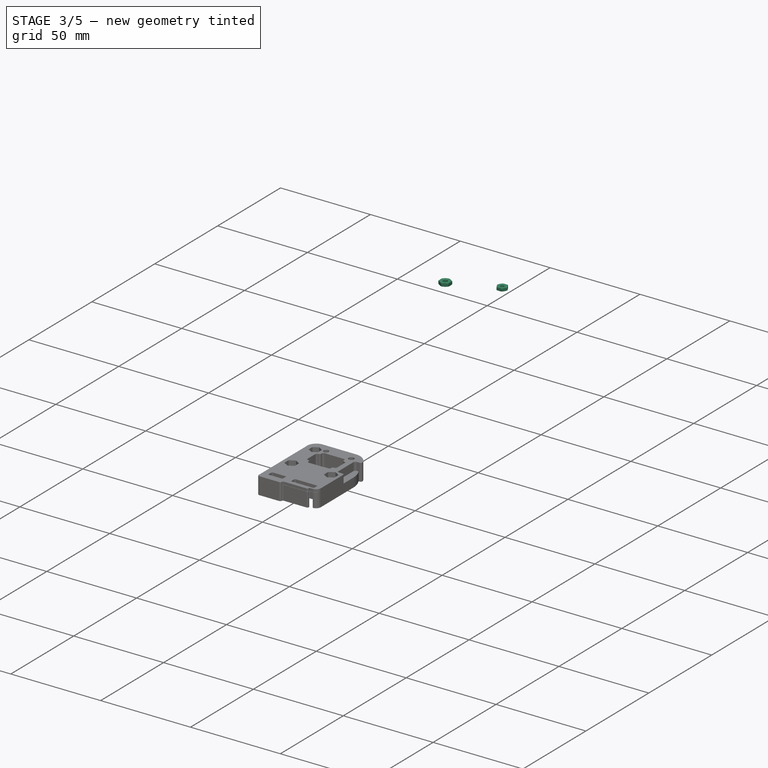
[diagram: stage 3 of 5 — iso view after this stage's code; geometry added in this stage tinted green]
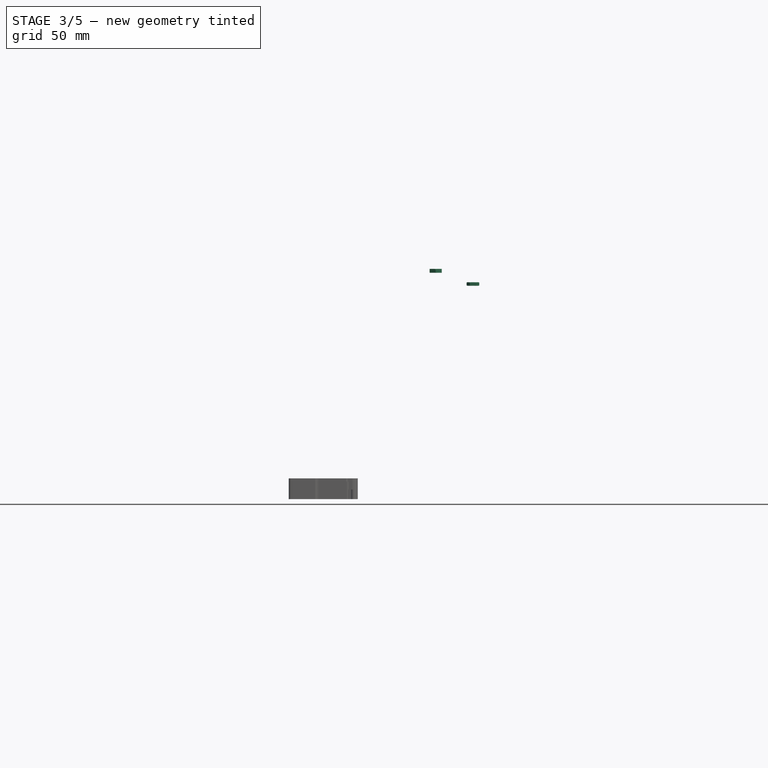
[diagram: stage 3 of 5 — front view after this stage's code; geometry added in this stage tinted green]
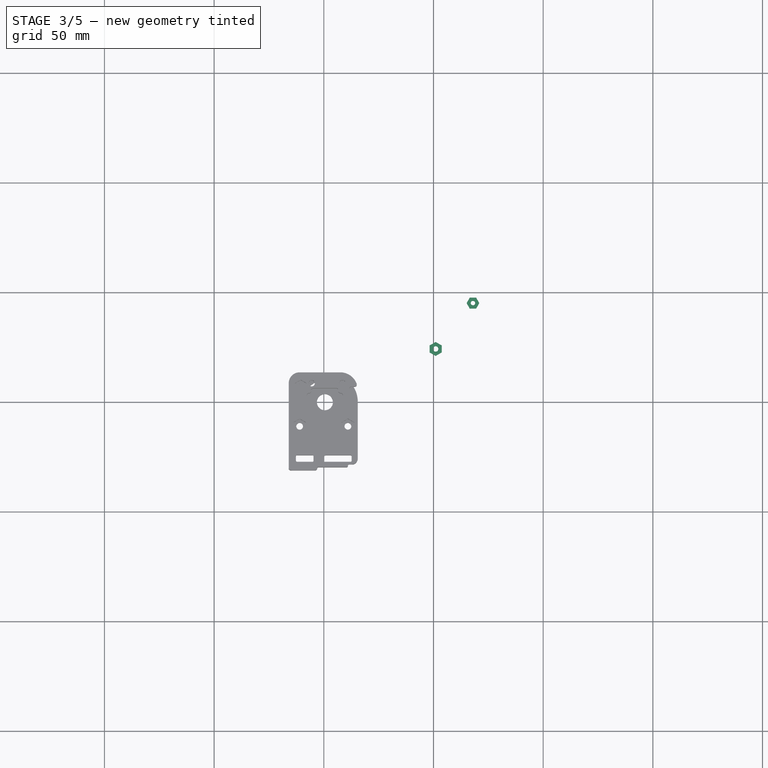
[diagram: stage 3 of 5 — top view after this stage's code; geometry added in this stage tinted green]
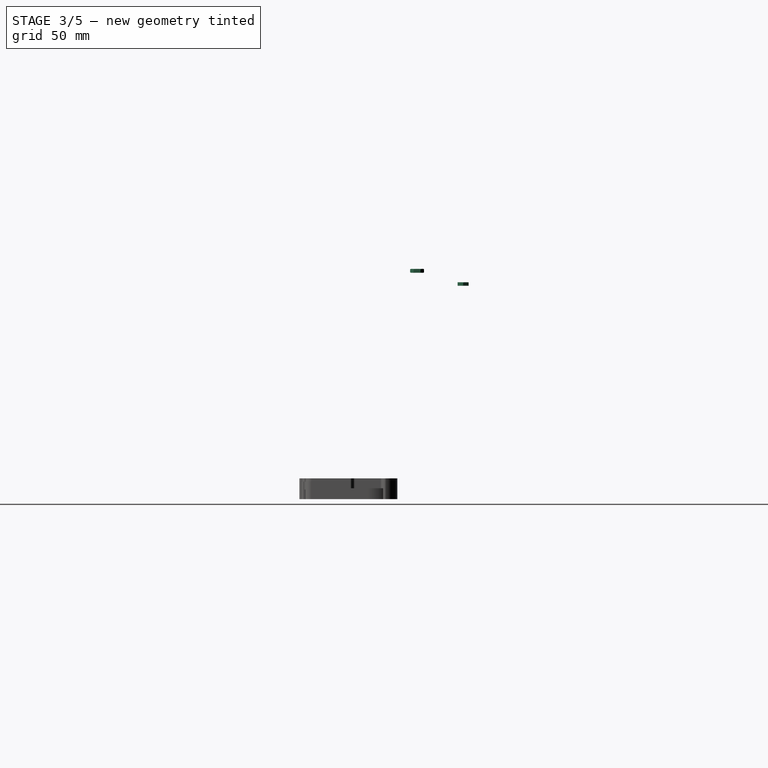
[diagram: stage 3 of 5 — right view after this stage's code; geometry added in this stage tinted green]
FEATURE [Part::FeaturePython] Nut005  label="M2.5-Nut003"  # Fasteners workbench fastener (typed FeaturePython)
  Placement = pos=(68,43.5,98.9) rot=(0,1,0;3.14159rad)
  diameter = 3
  invert = false
  matchOuter = false
  offset = 0
  thread = false
  type = 6
FEATURE [Part::FeaturePython] Nut006  label="M3-Nut002"  # Fasteners workbench fastener (typed FeaturePython)
  Placement = pos=(51,22.5,105) rot=(0.965926,0.258819,0;3.14159rad)
  diameter = 4
  invert = false
  matchOuter = false
  offset = 0
  thread = false
  type = 6
FEATURE [Sketcher::SketchObject] Sketch015  label="GrayHill_Mainpocket_3mm_Sketch001"
  MapMode = 5
  Placement = pos=(0,0,0) rot=(1,0,0;3.14159rad)
  Support = -> [Pocket013]
  sketch-geometry (5):
    g0: GeomPoint X=0 Y=22 Z=0
    g1: LineSegment StartX=12.85 StartY=15.5 StartZ=0 EndX=-12.85 EndY=15.5 EndZ=0
    g2: LineSegment StartX=-12.85 StartY=15.5 StartZ=0 EndX=-12.85 EndY=28.5 EndZ=0
    g3: LineSegment StartX=-12.85 StartY=28.5 StartZ=0 EndX=12.85 EndY=28.5 EndZ=0
    g4: LineSegment StartX=12.85 StartY=28.5 StartZ=0 EndX=12.85 EndY=15.5 EndZ=0
  constraints (13):
    c: PointOnObject(g0,g-2)
    c: DistanceY(g-1,g0) = 22
    c: Coincident(g1,g2)
    c: Coincident(g2,g3)
    c: Coincident(g3,g4)
    c: Coincident(g4,g1)
    c: Horizontal(g1)
    c: Horizontal(g3)
    c: Vertical(g2)
    c: Vertical(g4)
    c: DistanceY(g2,g2) = 13
    c: DistanceX(g3,g3) = 25.7
    c: Symmetric(g1,g2,g0)
FEATURE [PartDesign::Pocket] Pocket014  label="Grayhill_main_3mm_Pocket001"
  BaseFeature = -> Pocket013
  Length = 3
  Length2 = 100
  Profile = -> Sketch015
  Type = 0
FEATURE [Sketcher::SketchObject] Sketch019
  MapMode = 5
  Placement = pos=(0,0,0) rot=(1,0,0;3.14159rad)
  sketch-geometry (5):
    g0: LineSegment StartX=-16 StartY=-10 StartZ=0 EndX=-11 EndY=-10 EndZ=0
    g1: LineSegment StartX=-10 StartY=-11 StartZ=0 EndX=-10 EndY=-14 EndZ=0
    g2: LineSegment StartX=-10 StartY=-14 StartZ=0 EndX=-16 EndY=-14 EndZ=0
    g3: LineSegment StartX=-16 StartY=-14 StartZ=0 EndX=-16 EndY=-10 EndZ=0
    g4: ArcOfCircle CenterX=-11 CenterY=-11 CenterZ=0 NormalX=0 NormalY=0 NormalZ=1 AngleXU=0 Radius=1 StartAngle=1.12e-14 EndAngle=1.5708
  constraints (14):
    c: Coincident(g1,g2)
    c: Coincident(g2,g3)
    c: Coincident(g3,g0)
    c: Horizontal(g0)
    c: Horizontal(g2)
    c: Vertical(g1)
    c: Vertical(g3)
    c: DistanceX(g2,g2) = 6
    c: DistanceY(g3,g3) = 4
    c: DistanceY(g0,g-1) = 10
    c: DistanceX(g1,g-1) = 10
    c: Tangent(g0,g4) = 1.5708
    c: Tangent(g1,g4) = 1.5708
    c: Radius(g4) = 1
FEATURE [PartDesign::Pocket] Pocket011  label="TempSensor_cutout_Pocket001"
  BaseFeature = -> Pocket014
  Length = 2.5
  Length2 = 100
  Profile = -> Sketch019
  Type = 0
FEATURE [Sketcher::SketchObject] Sketch013  label="Grayhill_bottom_pocket_1_4mm_Sketch001"
  MapMode = 5
  Placement = pos=(0,0,3) rot=(1,0,0;3.14159rad)
  Support = -> [Pocket011]
  sketch-geometry (35):
    g0: GeomPoint X=0 Y=22 Z=0
    g1: LineSegment [constr] StartX=12.85 StartY=15.5 StartZ=0 EndX=-12.85 EndY=15.5 EndZ=0
    g2: LineSegment [constr] StartX=-12.85 StartY=15.5 StartZ=0 EndX=-12.85 EndY=28.5 EndZ=0
    g3: LineSegment [constr] StartX=-12.85 StartY=28.5 StartZ=0 EndX=12.85 EndY=28.5 EndZ=0
    g4: LineSegment [constr] StartX=12.85 StartY=28.5 StartZ=0 EndX=12.85 EndY=15.5 EndZ=0
    g5: LineSegment [constr] StartX=12.85 StartY=20.5 StartZ=0 EndX=-12.85 EndY=20.5 EndZ=0
    g6: LineSegment [constr] StartX=-12.85 StartY=20.5 StartZ=0 EndX=-12.85 EndY=23.5 EndZ=0
    g7: LineSegment [constr] StartX=-12.85 StartY=23.5 StartZ=0 EndX=12.85 EndY=23.5 EndZ=0
    g8: LineSegment [constr] StartX=12.85 StartY=23.5 StartZ=0 EndX=12.85 EndY=20.5 EndZ=0
    g9: LineSegment [constr] StartX=1.5 StartY=15.5 StartZ=0 EndX=-1.5 EndY=15.5 EndZ=0
    g10: LineSegment [constr] StartX=-1.5 StartY=15.5 StartZ=0 EndX=-1.5 EndY=28.5 EndZ=0
    g11: LineSegment [constr] StartX=-1.5 StartY=28.5 StartZ=0 EndX=1.5 EndY=28.5 EndZ=0
    g12: LineSegment [constr] StartX=1.5 StartY=28.5 StartZ=0 EndX=1.5 EndY=15.5 EndZ=0
    g13: GeomPoint X=12.85 Y=22 Z=0
    g14: Circle CenterX=0 CenterY=22 CenterZ=0 NormalX=0 NormalY=0 NormalZ=1 AngleXU=0 Radius=1.8
    g15: LineSegment StartX=-12.85 StartY=20.5 StartZ=0 EndX=-3.5 EndY=20.5 EndZ=0
    g16: LineSegment StartX=-1.5 StartY=18.5 StartZ=0 EndX=-1.5 EndY=15.5 EndZ=0
    g17: LineSegment StartX=-1.5 StartY=15.5 StartZ=0 EndX=-12.85 EndY=15.5 EndZ=0
    g18: LineSegment StartX=-12.85 StartY=15.5 StartZ=0 EndX=-12.85 EndY=20.5 EndZ=0
    g19: LineSegment StartX=1.5 StartY=15.5 StartZ=0 EndX=12.85 EndY=15.5 EndZ=0
    g20: LineSegment StartX=12.85 StartY=15.5 StartZ=0 EndX=12.85 EndY=20.5 EndZ=0
    g21: LineSegment StartX=12.85 StartY=20.5 StartZ=0 EndX=3.5 EndY=20.5 EndZ=0
    g22: LineSegment StartX=1.5 StartY=18.5 StartZ=0 EndX=1.5 EndY=15.5 EndZ=0
    g23: LineSegment StartX=-12.85 StartY=23.5 StartZ=0 EndX=-3.5 EndY=23.5 EndZ=0
    g24: LineSegment StartX=-1.5 StartY=25.5 StartZ=0 EndX=-1.5 EndY=28.5 EndZ=0
    g25: LineSegment StartX=-1.5 StartY=28.5 StartZ=0 EndX=-12.85 EndY=28.5 EndZ=0
    g26: LineSegment StartX=-12.85 StartY=28.5 StartZ=0 EndX=-12.85 EndY=23.5 EndZ=0
    g27: LineSegment StartX=1.5 StartY=28.5 StartZ=0 EndX=12.85 EndY=28.5 EndZ=0
    g28: LineSegment StartX=12.85 StartY=28.5 StartZ=0 EndX=12.85 EndY=23.5 EndZ=0
    g29: LineSegment StartX=12.85 StartY=23.5 StartZ=0 EndX=3.5 EndY=23.5 EndZ=0
    g30: LineSegment StartX=1.5 StartY=25.5 StartZ=0 EndX=1.5 EndY=28.5 EndZ=0
    g31: ArcOfCircle CenterX=3.5 CenterY=25.5 CenterZ=0 NormalX=0 NormalY=0 NormalZ=1 AngleXU=0 Radius=2 StartAngle=3.14159 EndAngle=4.71239
    g32: ArcOfCircle CenterX=3.5 CenterY=18.5 CenterZ=0 NormalX=0 NormalY=0 NormalZ=1 AngleXU=0 Radius=2 StartAngle=1.5708 EndAngle=3.14159
    g33: ArcOfCircle CenterX=-3.5 CenterY=18.5 CenterZ=0 NormalX=0 NormalY=0 NormalZ=1 AngleXU=0 Radius=2 StartAngle=6e-16 EndAngle=1.5708
    g34: ArcOfCircle CenterX=-3.5 CenterY=25.5 CenterZ=0 NormalX=0 NormalY=0 NormalZ=1 AngleXU=0 Radius=2 StartAngle=4.71239 EndAngle=6.28319
  constraints (87):
    c: PointOnObject(g0,g-2)
    c: DistanceY(g-1,g0) = 22
    c: Coincident(g1,g2)
    c: Coincident(g2,g3)
    c: Coincident(g3,g4)
    c: Coincident(g4,g1)
    c: Horizontal(g1)
    c: Horizontal(g3)
    c: Vertical(g2)
    c: Vertical(g4)
    c: DistanceY(g2,g2) = 13
    c: DistanceX(g1,g1) = 25.7
    c: Symmetric(g1,g2,g0)
    c: Coincident(g5,g6)
    c: Coincident(g6,g7)
    c: Coincident(g7,g8)
    c: Coincident(g8,g5)
    c: Horizontal(g5)
    c: Horizontal(g7)
    c: Vertical(g6)
    c: Vertical(g8)
    c: PointOnObject(g5,g4)
    c: PointOnObject(g6,g2)
    c: Coincident(g9,g10)
    c: Coincident(g10,g11)
    c: Coincident(g11,g12)
    c: Coincident(g12,g9)
    c: Horizontal(g11)
    c: Vertical(g10)
    c: Vertical(g12)
    c: PointOnObject(g9,g1)
    c: PointOnObject(g10,g3)
    c: DistanceY(g5,g7) = 3
    c: DistanceX(g9,g9) = 3
    c: Symmetric(g9,g9,g-2)
    c: Symmetric(g5,g7,g13)
    c: Horizontal(g13,g0)
    c: Coincident(g14,g0)
    c: Diameter(g14) = 3.6
    c: Coincident(g16,g17)
    c: Coincident(g17,g18)
    c: Coincident(g18,g15)
    c: Horizontal(g15)
    c: Horizontal(g17)
    c: Vertical(g16)
    c: Vertical(g18)
    c: Coincident(g15,g5)
    c: Coincident(g16,g9)
    c: Coincident(g19,g20)
    c: Coincident(g20,g21)
    c: Coincident(g22,g19)
    c: Horizontal(g19)
    c: Horizontal(g21)
    c: Vertical(g20)
    c: Vertical(g22)
    c: Coincident(g19,g9)
    c: Coincident(g20,g5)
    c: Coincident(g24,g25)
    c: Coincident(g25,g26)
    c: Coincident(g26,g23)
    c: Horizontal(g23)
    c: Horizontal(g25)
    c: Vertical(g24)
    c: Vertical(g26)
    c: Coincident(g23,g6)
    c: Coincident(g24,g10)
    c: Coincident(g27,g28)
    c: Coincident(g28,g29)
    c: Coincident(g30,g27)
    c: Horizontal(g27)
    c: Horizontal(g29)
    c: Vertical(g28)
    c: Vertical(g30)
    c: Coincident(g27,g11)
    c: Coincident(g28,g7)
    c: Tangent(g30,g31) = 1.5708
    c: Tangent(g29,g31) = 1.5708
    c: Tangent(g21,g32) = -1.5708
    c: Tangent(g22,g32) = -1.5708
    c: Tangent(g16,g33) = 1.5708
    c: Tangent(g15,g33) = 1.5708
    c: Tangent(g23,g34) = -1.5708
    c: Tangent(g24,g34) = -1.5708
    c: Equal(g34,g31)
    c: Equal(g31,g32)
    c: Equal(g32,g33)
    c: Radius(g31) = 2
FEATURE [PartDesign::Pocket] Pocket012  label="GrayHill_bottom_1_5mm_Pocket001"
  BaseFeature = -> Pocket011
  Length = 1.5
  Length2 = 100
  Profile = -> Sketch013
  Type = 0
FEATURE [PartDesign::Fillet] Fillet002
  Base = -> Pocket012 [Edge134,Edge129,Edge101,Edge1,Edge2,Edge103,Edge137]
  BaseFeature = -> Pocket012
  Radius = 1
FEATURE [PartDesign::Fillet] Fillet003
  Base = -> Fillet002 [Edge113,Edge129,Edge303,Edge308,Edge306,Edge288,Edge124,Edge304,Edge251,Edge311,Edge255,Edge253,Edge250,Edge287,Edge282,Edge231,Edge227,Edge226,Edge233,Edge314,Edge229,Edge313,Edge309,Edge135,Edge235,Edge333]
  BaseFeature = -> Fillet002
  Radius = 0.5
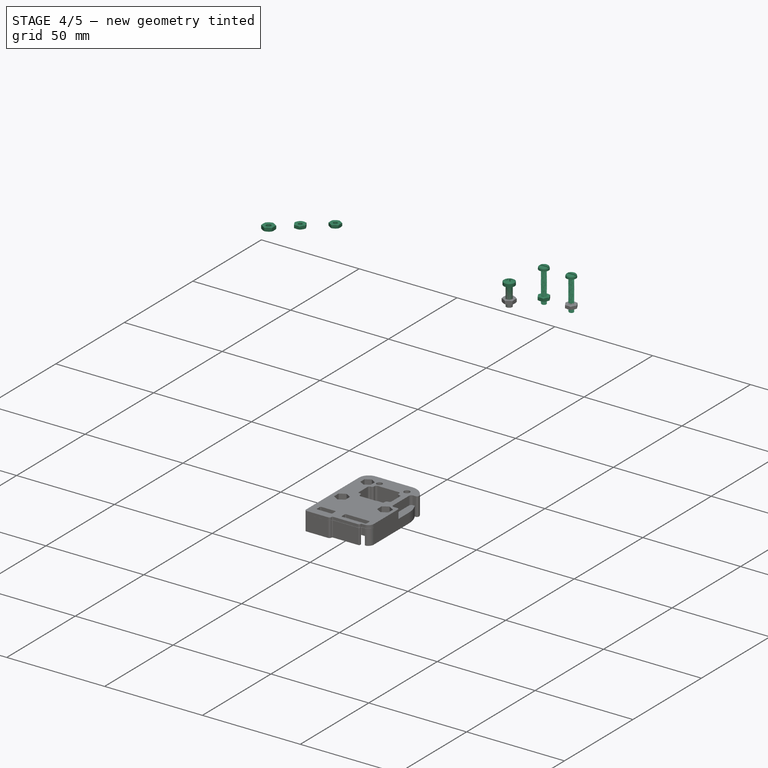
[diagram: stage 4 of 5 — iso view after this stage's code; geometry added in this stage tinted green]
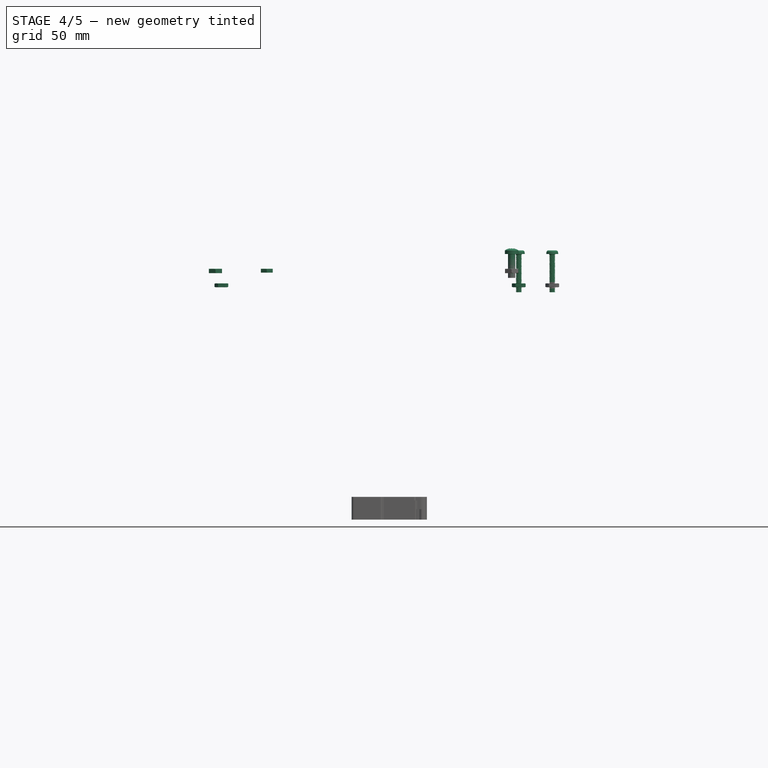
[diagram: stage 4 of 5 — front view after this stage's code; geometry added in this stage tinted green]
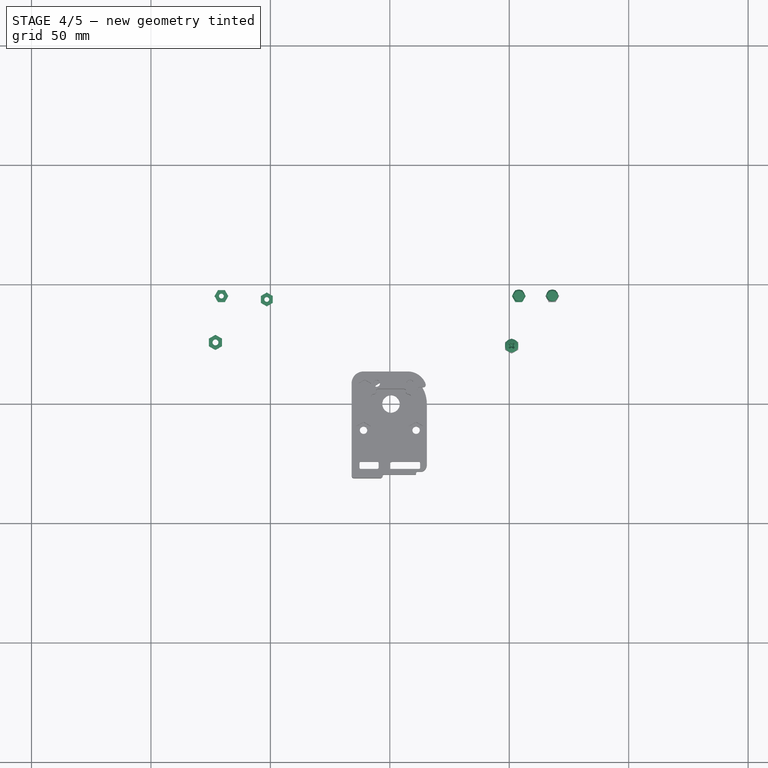
[diagram: stage 4 of 5 — top view after this stage's code; geometry added in this stage tinted green]
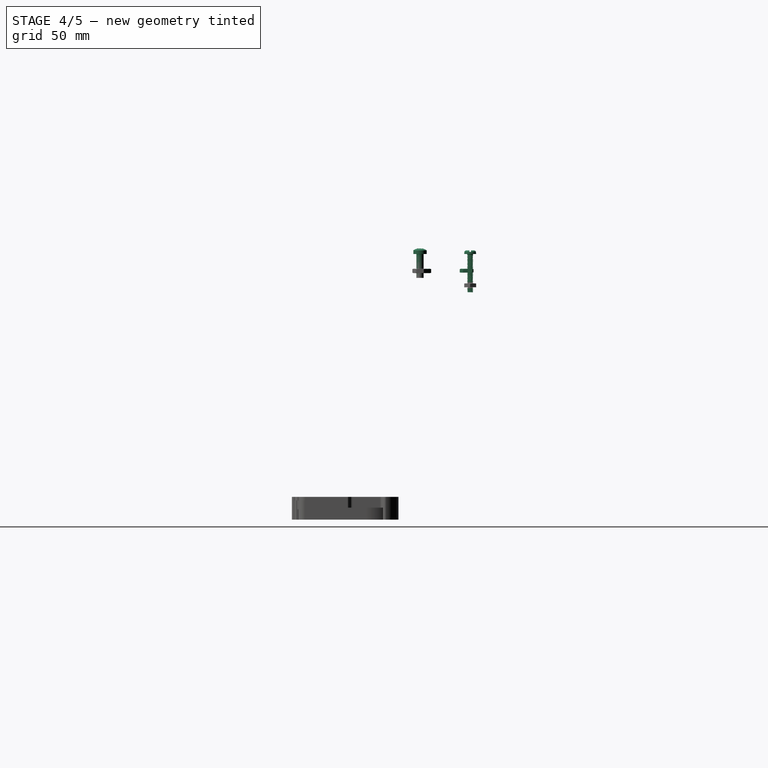
[diagram: stage 4 of 5 — right view after this stage's code; geometry added in this stage tinted green]
FEATURE [Part::FeaturePython] Nut001  label="M3-Nut001"  # Fasteners workbench fastener (typed FeaturePython)
  Placement = pos=(-73,24,105) rot=(0.965926,0.258819,0;3.14159rad)
  diameter = 4
  invert = false
  matchOuter = false
  offset = 0
  thread = false
  type = 6
FEATURE [Part::FeaturePython] Nut002  label="M2.5-Nut"  # Fasteners workbench fastener (typed FeaturePython)
  Placement = pos=(-51.5,42,105) rot=(0.965926,-0.258819,0;3.14159rad)
  diameter = 3
  invert = false
  matchOuter = false
  offset = 0
  thread = false
  type = 6
FEATURE [Part::Feature] Shape001  label="U6_SOT_23_6_5F350444"
  Placement = pos=(37.6,23,-1.2) rot=(0,1,0;3.14159rad)
  shape: bbox 2.8 x 2.9 x 1.55 mm, 124 faces (baked)
FEATURE [Part::Feature] Shape  label="C13_C_0603_1608Metric_5F263377"
  Placement = pos=(37.6,25.6,-1.2) rot=(1,0,0;3.14159rad)
  shape: bbox 1.6 x 0.8 x 0.8 mm, 28 faces (baked)
FEATURE [Part::Feature] Pcb_c89d
  Placement = pos=(-150,100,0) rot=(0,0,1;0rad)
  shape: bbox 165 x 51.1 x 1.2 mm, 169 faces (baked)
FEATURE [PartDesign::CoordinateSystem] Local_CS_c89d
  AttacherType = Attacher::AttachEngine3D
FEATURE [Sketcher::SketchObject] PCB_Sketch_c89d
  sketch-geometry (16):
    g0: LineSegment StartX=-78.5 StartY=9e-16 StartZ=0 EndX=78.5 EndY=8.9e-15 EndZ=0
    g1: LineSegment StartX=82.5 StartY=4 StartZ=0 EndX=82.5 EndY=47.1 EndZ=0
    g2: LineSegment StartX=78.5 StartY=51.1 StartZ=0 EndX=-78.5 EndY=51.1 EndZ=0
    g3: LineSegment StartX=-82.5 StartY=47.1 StartZ=0 EndX=-82.5 EndY=4 EndZ=0
    g4: LineSegment StartX=-2 StartY=47.65 StartZ=0 EndX=2 EndY=47.65 EndZ=0
    g5: LineSegment StartX=-2 StartY=48.95 StartZ=0 EndX=2 EndY=48.95 EndZ=0
    g6: LineSegment StartX=-2 StartY=2.15 StartZ=0 EndX=2 EndY=2.15 EndZ=0
    g7: LineSegment StartX=-2 StartY=3.45 StartZ=0 EndX=2 EndY=3.45 EndZ=0
    g8: ArcOfCircle CenterX=-78.5 CenterY=4 CenterZ=0 NormalX=0 NormalY=0 NormalZ=1 AngleXU=0 Radius=4 StartAngle=3.14159 EndAngle=4.71239
    g9: ArcOfCircle CenterX=78.5 CenterY=47.1 CenterZ=0 NormalX=0 NormalY=0 NormalZ=1 AngleXU=0 Radius=4 StartAngle=0 EndAngle=1.5708
    g10: ArcOfCircle CenterX=-2 CenterY=48.3 CenterZ=0 NormalX=0 NormalY=0 NormalZ=1 AngleXU=0 Radius=0.65 StartAngle=1.5708 EndAngle=4.71239
    g11: ArcOfCircle CenterX=2 CenterY=48.3 CenterZ=0 NormalX=0 NormalY=0 NormalZ=1 AngleXU=0 Radius=0.65 StartAngle=4.71239 EndAngle=7.85398
    g12: ArcOfCircle CenterX=-2 CenterY=2.8 CenterZ=0 NormalX=0 NormalY=0 NormalZ=1 AngleXU=0 Radius=0.65 StartAngle=1.5708 EndAngle=4.71239
    g13: ArcOfCircle CenterX=2 CenterY=2.8 CenterZ=0 NormalX=0 NormalY=0 NormalZ=1 AngleXU=0 Radius=0.65 StartAngle=4.71239 EndAngle=7.85398
    g14: ArcOfCircle CenterX=78.5 CenterY=4 CenterZ=0 NormalX=0 NormalY=0 NormalZ=1 AngleXU=0 Radius=4 StartAngle=4.71239 EndAngle=6.28319
    g15: ArcOfCircle CenterX=-78.5 CenterY=47.1 CenterZ=0 NormalX=0 NormalY=0 NormalZ=1 AngleXU=0 Radius=4 StartAngle=1.5708 EndAngle=3.14159
  constraints (16):
    c: Coincident(g8,g3)
    c: Coincident(g15,g3)
    c: Coincident(g0,g8)
    c: Coincident(g2,g15)
    c: Coincident(g6,g12)
    c: Coincident(g7,g12)
    c: Coincident(g4,g10)
    c: Coincident(g5,g10)
    c: Coincident(g6,g13)
    c: Coincident(g13,g7)
    c: Coincident(g4,g11)
    c: Coincident(g11,g5)
    c: Coincident(g0,g14)
    c: Coincident(g9,g2)
    c: Coincident(g1,g14)
    c: Coincident(g9,g1)
FEATURE [App::Part] Board_Geoms_c89d
  Group = -> [Local_CS_c89d,Pcb_c89d,PCB_Sketch_c89d]
  Origin = -> Origin016
FEATURE [Part::Feature] Shape002  label="OLED1_NHD-3.12-25664UCxx_5F25D347"
  Placement = pos=(0,25.5,0) rot=(0,0,1;0rad)
  shape: bbox 89.2 x 44 x 5.7 mm, 299 faces, 2 solids (baked)
FEATURE [Part::Feature] Shape003  label="ASM2_3dholder_right_asm-1xM3_5F225D96"
  Placement = pos=(62,35,-1.2) rot=(0,1,0;3.14159rad)
  shape: bbox 25.15 x 12.54 x 13.65 mm, 373 faces, 18 solids (baked)
FEATURE [Part::Feature] Shape009  label="U2_SOT_23_6_5F25D3EA"
  Placement = pos=(60,44,0) rot=(0,0,1;0rad)
  shape: bbox 2.8 x 2.9 x 1.55 mm, 124 faces (baked)
FEATURE [Part::Feature] Shape006  label="U5_SOT_23_6_5F33FDD6"
  Placement = pos=(-48,47,-1.2) rot=(1,0,0;3.14159rad)
  shape: bbox 2.8 x 2.9 x 1.55 mm, 124 faces (baked)
FEATURE [Part::Feature] Shape005  label="J3_FFC_14p-WE_687114182122_rev1_5F262E23"
  Placement = pos=(57.85,24.5,0.5) rot=(0,0,1;1.5708rad)
  shape: bbox 3.5 x 9 x 0.9883 mm, 793 faces, 18 solids (baked)
FEATURE [Part::Feature] Shape010  label="U1_SOT_23_6_5F40CC22"
  Placement = pos=(-47,42,0) rot=(0,0,1;0rad)
  shape: bbox 2.8 x 2.9 x 1.55 mm, 124 faces (baked)
FEATURE [Part::Feature] Shape007  label="U4_SOT_23_6_5F323DDD"
  Placement = pos=(0,41.5,-1.2) rot=(1,0,0;3.14159rad)
  shape: bbox 2.8 x 2.9 x 1.55 mm, 124 faces (baked)
FEATURE [Part::Feature] Shape011  label="R7_R_0603_1608Metric_5F25D3BE"
  Placement = pos=(43.5,23,-1.2) rot=(0.707107,0.707107,0;3.14159rad)
  shape: bbox 0.8 x 1.6 x 0.45 mm, 26 faces (baked)
FEATURE [Part::Feature] Shape012  label="R3_R_0603_1608Metric_5F345BAF"
  Placement = pos=(42,19.5,-1.2) rot=(0.707107,0.707107,0;3.14159rad)
  shape: bbox 0.8 x 1.6 x 0.45 mm, 26 faces (baked)
FEATURE [Part::Feature] Shape014  label="C12_C_0603_1608Metric_5F33FE10"
  Placement = pos=(-50.65,47.5,-1.2) rot=(0.707107,-0.707107,0;3.14159rad)
  shape: bbox 0.8 x 1.6 x 0.8 mm, 28 faces (baked)
FEATURE [Part::Feature] Shape008  label="U3_SOT_23_6_5F25D400"
  Placement = pos=(35,47,-1.2) rot=(0,1,0;3.14159rad)
  shape: bbox 2.8 x 2.9 x 1.55 mm, 124 faces (baked)
FEATURE [Part::Feature] Shape013  label="R2_R_0603_1608Metric_5F25D369"
  Placement = pos=(45,19.5,-1.2) rot=(0.707107,0.707107,0;3.14159rad)
  shape: bbox 0.8 x 1.6 x 0.45 mm, 26 faces (baked)
FEATURE [Part::Feature] Shape015  label="C11_C_0603_1608Metric_5F25D1D3"
  Placement = pos=(-3,42,-1.2) rot=(0.707107,-0.707107,0;3.14159rad)
  shape: bbox 0.8 x 1.6 x 0.8 mm, 28 faces (baked)
FEATURE [Part::Feature] Shape017  label="C9_C_0603_1608Metric_5F2C710A"
  Placement = pos=(60,41.3,0) rot=(0,0,1;3.14159rad)
  shape: bbox 1.6 x 0.8 x 0.8 mm, 28 faces (baked)
FEATURE [Part::Feature] Shape016  label="C10_C_0603_1608Metric_5F25D1C2"
  Placement = pos=(37.75,46.25,-1.2) rot=(0.707107,0.707107,0;3.14159rad)
  shape: bbox 0.8 x 1.6 x 0.8 mm, 28 faces (baked)
FEATURE [Part::Feature] Shape018  label="C8_C_0603_1608Metric_5F40CBED"
  Placement = pos=(-47,39.3,0) rot=(0,0,1;3.14159rad)
  shape: bbox 1.6 x 0.8 x 0.8 mm, 28 faces (baked)
FEATURE [App::Part] Top_c89d
  Group = -> [Shape002,Shape005,Shape009,Shape010,Shape017,Shape018]
  Origin = -> Origin003
FEATURE [Part::Feature] Shape021  label="C5_C_0603_1608Metric_5F25D16D"
  Placement = pos=(22.5,42.5,-1.2) rot=(1,0,0;3.14159rad)
  shape: bbox 1.6 x 0.8 x 0.8 mm, 28 faces (baked)
FEATURE [Part::Feature] Shape019  label="C7_C_0603_1608Metric_5F25D18F"
  Placement = pos=(42,23,-1.2) rot=(0.707107,-0.707107,0;3.14159rad)
  shape: bbox 0.8 x 1.6 x 0.8 mm, 28 faces (baked)
FEATURE [Part::Feature] Shape022  label="C4_C_0603_1608Metric_5F25D15C"
  Placement = pos=(25.75,39.5,-1.2) rot=(0,1,0;3.14159rad)
  shape: bbox 1.6 x 0.8 x 0.8 mm, 28 faces (baked)
FEATURE [Part::Feature] Shape020  label="C6_C_0603_1608Metric_5F25D17E"
  Placement = pos=(22.5,47.25,-1.2) rot=(1,0,0;3.14159rad)
  shape: bbox 1.6 x 0.8 x 0.8 mm, 28 faces (baked)
FEATURE [Part::Feature] Shape023  label="C3_C_0603_1608Metric_5F25D14B"
  Placement = pos=(22.5,39.5,-1.2) rot=(1,0,0;3.14159rad)
  shape: bbox 1.6 x 0.8 x 0.8 mm, 28 faces (baked)
FEATURE [Part::Feature] Shape024  label="C2_C_0603_1608Metric_5F329F5C"
  Placement = pos=(5.5,39.5,-1.2) rot=(1,0,0;3.14159rad)
  shape: bbox 1.6 x 0.8 x 0.8 mm, 28 faces (baked)
FEATURE [Part::Feature] Shape027  label="J2_5052781433_5F2314F6"
  Placement = pos=(26,33.1,-1.2) rot=(0,0.707107,-0.707107;3.14159rad)
  shape: bbox 12.5 x 5.3 x 1.9 mm, 884 faces (baked)
FEATURE [Part::Feature] Shape025  label="C1_C_0603_1608Metric_5F25D129"
  Placement = pos=(-22.7125,42.5,-1.2) rot=(1,0,0;3.14159rad)
  shape: bbox 1.6 x 0.8 x 0.8 mm, 28 faces (baked)
FEATURE [Part::Feature] Shape026  label="J1_5052781433_5F23499A"
  Placement = pos=(0,33.1,-1.2) rot=(0,0.707107,-0.707107;3.14159rad)
  shape: bbox 12.5 x 5.3 x 1.9 mm, 884 faces (baked)
FEATURE [App::Part] Bot_c89d
  Group = -> [Shape,Shape001,Shape003,Shape006,Shape007,Shape008,Shape011,Shape012,Shape013,Shape014,Shape015,Shape016,Shape019,Shape020,Shape021,Shape022,Shape023,Shape024,Shape025,Shape026,Shape027]
  Origin = -> Origin004
FEATURE [App::Part] Step_Models_c89d
  Group = -> [Top_c89d,Bot_c89d]
  Origin = -> Origin002
FEATURE [Part::Feature] Shape004  label="FFC1_FFC_50mm_folded_x2_5F281811"
  Placement = pos=(58,24.5,0.35) rot=(0,0,1;0rad)
  shape: bbox 20.63 x 7.5 x 2.575 mm, 174 faces (baked)
FEATURE [App::Part] TopV_c89d
  Group = -> [Shape004]
  Origin = -> Origin006
FEATURE [App::Part] Step_Virtual_Models_c89d
  Group = -> [TopV_c89d]
  Origin = -> Origin005
FEATURE [App::Part] Board_c89d  label="ss_frontpanel_inner_plate"
  Group = -> [Board_Geoms_c89d,Step_Models_c89d,Step_Virtual_Models_c89d]
  Origin = -> Origin001
  Placement = pos=(0,0,111.2) rot=(0,0,1;0rad)
FEATURE [Part::FeaturePython] Nut003  label="M2.5-Nut001"  # Fasteners workbench fastener (typed FeaturePython)
  Placement = pos=(-70.5,43.5,98.9) rot=(0,1,0;3.14159rad)
  diameter = 3
  invert = false
  matchOuter = false
  offset = 0
  thread = false
  type = 6
FEATURE [Part::Feature] Part__Feature004  label="PinHeader_1x03_P254mm_Vertical"
  Placement = pos=(-62,4.11,110) rot=(0.707107,0.707107,0;3.14159rad)
  shape: bbox 7.62 x 2.54 x 11.54 mm, 76 faces (baked)
FEATURE [Part::Feature] Part__Feature005  label="PinSocket_1x03_P254mm_Vertical"
  Placement = pos=(-67.08,4.11,100.5) rot=(0,0,1;1.5708rad)
  shape: bbox 7.62 x 2.54 x 10.1 mm, 103 faces (baked)
FEATURE [Part::Feature] Part__Feature006  label="PinHeader_1x03_P254mm_Vertical001"
  Placement = pos=(62,4.11,110) rot=(0.707107,0.707107,0;3.14159rad)
  shape: bbox 7.62 x 2.54 x 11.54 mm, 76 faces (baked)
FEATURE [Part::Feature] Part__Feature007  label="PinSocket_1x03_P254mm_Vertical001"
  Placement = pos=(56.92,4.11,100.5) rot=(0,0,1;1.5708rad)
  shape: bbox 7.62 x 2.54 x 10.1 mm, 103 faces (baked)
FEATURE [Part::Feature] Part__Feature008  label="PinHeader_1x05_P254mm_Vertical001"
  Placement = pos=(49,40.08,110) rot=(0,1,0;3.14159rad)
  shape: bbox 2.54 x 12.7 x 11.54 mm, 124 faces (baked)
FEATURE [Part::Feature] Part__Feature009  label="PinSocket_1x05_P254mm_Vertical001"
  Placement = pos=(49,40.08,100.5) rot=(0,0,1;0rad)
  shape: bbox 2.54 x 12.7 x 10.1 mm, 165 faces (baked)
FEATURE [Part::Feature] Part__Feature010  label="Body001"
  shape: bbox 26.3 x 19 x 28.2 mm, 42 faces (baked)
FEATURE [Part::Feature] Part__Feature011  label="M8x7.0-ScrewTap001"
  Placement = pos=(0,0,15.2) rot=(0,0,1;0rad)
  shape: bbox 10.62 x 11.9 x 10 mm, 30 faces (baked)
FEATURE [App::Part] KY041
  Group = -> [Part__Feature010,Part__Feature011]
  Origin = -> Origin017
  Placement = pos=(62,35,98.9) rot=(0,0,1;3.14159rad)
FEATURE [Part::FeaturePython] Screw005  label="M3x10-Screw"  # Fasteners workbench fastener (typed FeaturePython)
  Placement = pos=(51,22.5,111.2) rot=(0,0,1;0rad)
  diameter = 4
  invert = false
  length = 4
  lengthCustom = 10
  matchOuter = false
  offset = 0
  thread = false
  type = 17
FEATURE [Part::FeaturePython] Screw006  label="M2.5x16-Screw001"  # Fasteners workbench fastener (typed FeaturePython)
  Placement = pos=(54,43.5,111.2) rot=(0,1,0;0rad)
  diameter = 3
  invert = false
  length = 7
  lengthCustom = 16
  matchOuter = false
  offset = 0
  thread = true
  type = 11
FEATURE [Part::FeaturePython] Screw007  label="M2.5x16-Screw002"  # Fasteners workbench fastener (typed FeaturePython)
  Placement = pos=(68,43.5,111.2) rot=(0,1,0;0rad)
  diameter = 3
  invert = false
  length = 7
  lengthCustom = 16
  matchOuter = false
  offset = 0
  thread = true
  type = 11
FEATURE [Part::FeaturePython] Nut004  label="M2.5-Nut002"  # Fasteners workbench fastener (typed FeaturePython)
  Placement = pos=(54,43.5,98.9) rot=(0,1,0;3.14159rad)
  diameter = 3
  invert = false
  matchOuter = false
  offset = 0
  thread = false
  type = 6
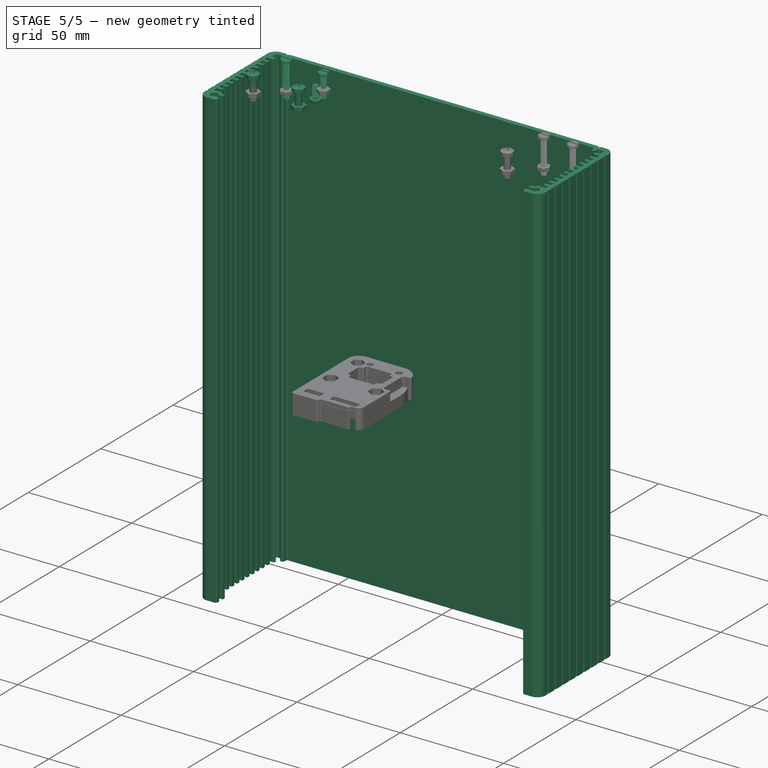
[diagram: stage 5 of 5 — iso view after this stage's code; geometry added in this stage tinted green]
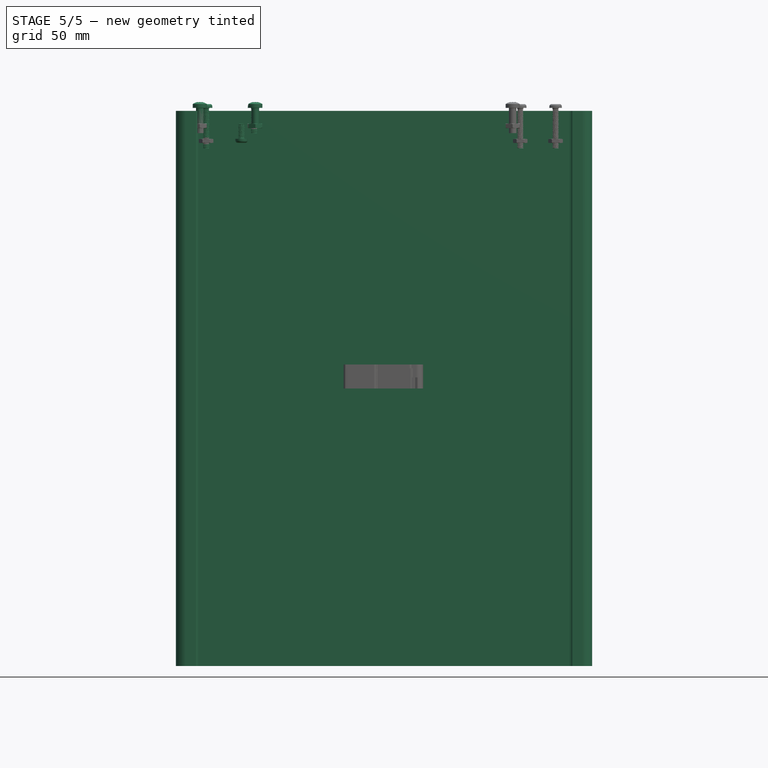
[diagram: stage 5 of 5 — front view after this stage's code; geometry added in this stage tinted green]
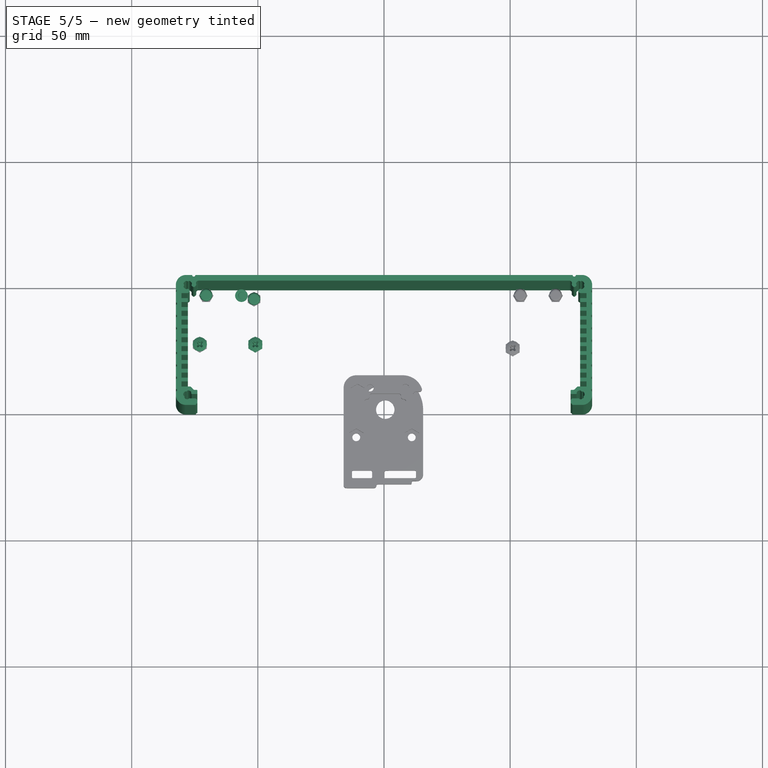
[diagram: stage 5 of 5 — top view after this stage's code; geometry added in this stage tinted green]
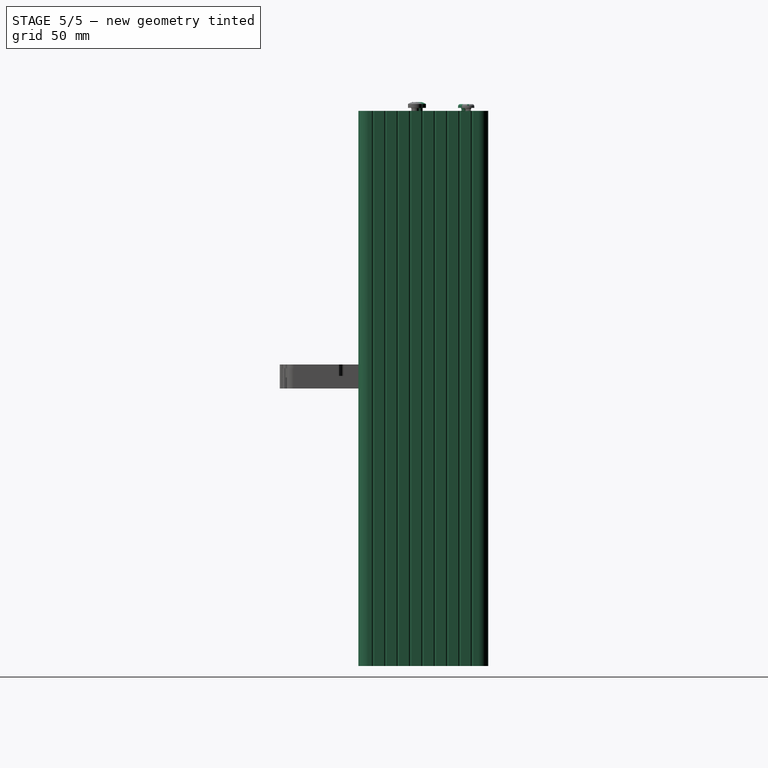
[diagram: stage 5 of 5 — right view after this stage's code; geometry added in this stage tinted green]
FEATURE [Sketcher::SketchObject] Sketch
  sketch-geometry (238):
    g0: ArcOfCircle CenterX=73.5005 CenterY=48.25 CenterZ=0 NormalX=0 NormalY=0 NormalZ=1 AngleXU=0.0359308 Radius=1 StartAngle=0 EndAngle=1.53487
    g1: ArcOfCircle CenterX=-73.5005 CenterY=48.25 CenterZ=0 NormalX=0 NormalY=0 NormalZ=1 AngleXU=3.10566 Radius=1 StartAngle=4.74832 EndAngle=6.28319
    g2: ArcOfCircle CenterX=82.5 CenterY=5.85 CenterZ=0 NormalX=0 NormalY=0 NormalZ=1 AngleXU=1.5708 Radius=0.48 StartAngle=0 EndAngle=3.14159
    g3: LineSegment StartX=82.5 StartY=10.27 StartZ=0 EndX=82.5 EndY=6.33 EndZ=0
    g4: ArcOfCircle CenterX=82.5 CenterY=10.75 CenterZ=0 NormalX=0 NormalY=0 NormalZ=1 AngleXU=1.5708 Radius=0.48 StartAngle=0 EndAngle=3.14159
    g5: LineSegment StartX=82.5 StartY=15.17 StartZ=0 EndX=82.5 EndY=11.23 EndZ=0
    g6: ArcOfCircle CenterX=82.5 CenterY=15.65 CenterZ=0 NormalX=0 NormalY=0 NormalZ=1 AngleXU=1.5708 Radius=0.48 StartAngle=0 EndAngle=3.14159
    g7: LineSegment StartX=82.5 StartY=20.07 StartZ=0 EndX=82.5 EndY=16.13 EndZ=0
    g8: ArcOfCircle CenterX=82.5 CenterY=20.55 CenterZ=0 NormalX=0 NormalY=0 NormalZ=1 AngleXU=1.5708 Radius=0.48 StartAngle=0 EndAngle=3.14159
    g9: LineSegment StartX=82.5 StartY=24.97 StartZ=0 EndX=82.5 EndY=21.03 EndZ=0
    g10: ArcOfCircle CenterX=82.5 CenterY=25.45 CenterZ=0 NormalX=0 NormalY=0 NormalZ=1 AngleXU=1.5708 Radius=0.48 StartAngle=0 EndAngle=3.14159
    g11: LineSegment StartX=82.5 StartY=29.87 StartZ=0 EndX=82.5 EndY=25.93 EndZ=0
    g12: ArcOfCircle CenterX=82.5 CenterY=30.35 CenterZ=0 NormalX=0 NormalY=0 NormalZ=1 AngleXU=1.5708 Radius=0.48 StartAngle=0 EndAngle=3.14159
    g13: LineSegment StartX=82.5 StartY=34.77 StartZ=0 EndX=82.5 EndY=30.83 EndZ=0
    g14: ArcOfCircle CenterX=82.5 CenterY=35.25 CenterZ=0 NormalX=0 NormalY=0 NormalZ=1 AngleXU=1.5708 Radius=0.48 StartAngle=0 EndAngle=3.14159
    g15: LineSegment StartX=82.5 StartY=39.67 StartZ=0 EndX=82.5 EndY=35.73 EndZ=0
    g16: ArcOfCircle CenterX=82.5 CenterY=40.15 CenterZ=0 NormalX=0 NormalY=0 NormalZ=1 AngleXU=1.5708 Radius=0.48 StartAngle=0 EndAngle=3.14159
    g17: LineSegment StartX=82.5 StartY=44.57 StartZ=0 EndX=82.5 EndY=40.63 EndZ=0
    g18: ArcOfCircle CenterX=82.5 CenterY=45.05 CenterZ=0 NormalX=0 NormalY=0 NormalZ=1 AngleXU=1.5708 Radius=0.48 StartAngle=0 EndAngle=3.14159
    g19: LineSegment StartX=82.5 StartY=47.5122 StartZ=0 EndX=82.5 EndY=45.53 EndZ=0
    g20: ArcOfCircle CenterX=78.5122 CenterY=47.5122 CenterZ=0 NormalX=0 NormalY=0 NormalZ=1 AngleXU=1.5708 Radius=3.9878 StartAngle=4.71239 EndAngle=6.28319
    g21: LineSegment StartX=76.035 StartY=51.5 StartZ=0 EndX=78.5122 EndY=51.5 EndZ=0
    g22: ArcOfCircle CenterX=75.4 CenterY=51.5 CenterZ=0 NormalX=0 NormalY=0 NormalZ=1 AngleXU=3.14159 Radius=0.635 StartAngle=0 EndAngle=3.14159
    g23: LineSegment StartX=-74.765 StartY=51.5 StartZ=0 EndX=74.765 EndY=51.5 EndZ=0
    g24: ArcOfCircle CenterX=-75.4 CenterY=51.5 CenterZ=0 NormalX=0 NormalY=0 NormalZ=1 AngleXU=-3.14159 Radius=0.635 StartAngle=0 EndAngle=3.14159
    g25: LineSegment StartX=-78.5122 StartY=51.5 StartZ=0 EndX=-76.035 EndY=51.5 EndZ=0
    g26: ArcOfCircle CenterX=-78.5122 CenterY=47.5122 CenterZ=0 NormalX=0 NormalY=0 NormalZ=1 AngleXU=3.14159 Radius=3.9878 StartAngle=4.71239 EndAngle=6.28319
    g27: LineSegment StartX=-82.5 StartY=45.53 StartZ=0 EndX=-82.5 EndY=47.5122 EndZ=0
    g28: ArcOfCircle CenterX=-82.5 CenterY=45.15 CenterZ=0 NormalX=0 NormalY=0 NormalZ=1 AngleXU=-1.5708 Radius=0.38 StartAngle=0 EndAngle=3.14159
    g29: LineSegment StartX=-82.5 StartY=40.63 StartZ=0 EndX=-82.5 EndY=44.77 EndZ=0
    g30: ArcOfCircle CenterX=-82.5 CenterY=40.15 CenterZ=0 NormalX=0 NormalY=0 NormalZ=1 AngleXU=-1.5708 Radius=0.48 StartAngle=0 EndAngle=3.14159
    g31: LineSegment StartX=-82.5 StartY=35.73 StartZ=0 EndX=-82.5 EndY=39.67 EndZ=0
    g32: ArcOfCircle CenterX=-82.5 CenterY=35.25 CenterZ=0 NormalX=0 NormalY=0 NormalZ=1 AngleXU=-1.5708 Radius=0.48 StartAngle=0 EndAngle=3.14159
    g33: LineSegment StartX=-82.5 StartY=30.83 StartZ=0 EndX=-82.5 EndY=34.77 EndZ=0
    g34: ArcOfCircle CenterX=-82.5 CenterY=30.35 CenterZ=0 NormalX=0 NormalY=0 NormalZ=1 AngleXU=-1.5708 Radius=0.48 StartAngle=0 EndAngle=3.14159
    g35: LineSegment StartX=-82.5 StartY=25.93 StartZ=0 EndX=-82.5 EndY=29.87 EndZ=0
    g36: ArcOfCircle CenterX=-82.5 CenterY=25.45 CenterZ=0 NormalX=0 NormalY=0 NormalZ=1 AngleXU=-1.5708 Radius=0.48 StartAngle=0 EndAngle=3.14159
    g37: LineSegment StartX=-82.5 StartY=21.03 StartZ=0 EndX=-82.5 EndY=24.97 EndZ=0
    g38: ArcOfCircle CenterX=-82.5 CenterY=20.55 CenterZ=0 NormalX=0 NormalY=0 NormalZ=1 AngleXU=-1.5708 Radius=0.48 StartAngle=0 EndAngle=3.14159
    g39: LineSegment StartX=-82.5 StartY=16.13 StartZ=0 EndX=-82.5 EndY=20.07 EndZ=0
    g40: ArcOfCircle CenterX=-82.5 CenterY=15.65 CenterZ=0 NormalX=0 NormalY=0 NormalZ=1 AngleXU=-1.5708 Radius=0.48 StartAngle=0 EndAngle=3.14159
    g41: LineSegment StartX=-82.5 StartY=11.23 StartZ=0 EndX=-82.5 EndY=15.17 EndZ=0
    g42: ArcOfCircle CenterX=-82.5 CenterY=10.75 CenterZ=0 NormalX=0 NormalY=0 NormalZ=1 AngleXU=-1.5708 Radius=0.48 StartAngle=0 EndAngle=3.14159
    g43: LineSegment StartX=-82.5 StartY=6.33 StartZ=0 EndX=-82.5 EndY=10.27 EndZ=0
    g44: ArcOfCircle CenterX=-82.5 CenterY=5.85 CenterZ=0 NormalX=0 NormalY=0 NormalZ=1 AngleXU=-1.5708 Radius=0.48 StartAngle=0 EndAngle=3.14159
    g45: LineSegment StartX=-82.5 StartY=3.9451 StartZ=0 EndX=-82.5 EndY=5.37 EndZ=0
    g46: ArcOfCircle CenterX=-78.5549 CenterY=3.9451 CenterZ=0 NormalX=0 NormalY=0 NormalZ=1 AngleXU=-1.5708 Radius=3.9451 StartAngle=4.71239 EndAngle=6.28319
    g47: LineSegment StartX=-74.5975 StartY=-9.2928e-12 StartZ=0 EndX=-78.5549 EndY=-7.3699e-12 EndZ=0
    g48: ArcOfCircle CenterX=-73.9625 CenterY=-9.6007e-12 CenterZ=0 NormalX=0 NormalY=0 NormalZ=1 AngleXU=-4.848e-13 Radius=0.635 StartAngle=1.5708 EndAngle=3.14159
    g49: LineSegment StartX=-73.9625 StartY=1.58649 StartZ=0 EndX=-73.9625 EndY=0.635 EndZ=0
    g50: ArcOfCircle CenterX=-74.9625 CenterY=1.58649 CenterZ=0 NormalX=0 NormalY=0 NormalZ=1 AngleXU=1.5708 Radius=1 StartAngle=4.71239 EndAngle=6.28319
    g51: LineSegment StartX=-76.8058 StartY=2.58649 StartZ=0 EndX=-74.9625 EndY=2.58649 EndZ=0
    g52: ArcOfCircle CenterX=-76.8058 CenterY=2.90399 CenterZ=0 NormalX=0 NormalY=0 NormalZ=1 AngleXU=1.5708 Radius=0.3175 StartAngle=2.66675 EndAngle=3.14159
    g53: ArcOfCircle CenterX=-77.0961 CenterY=2.33925 CenterZ=0 NormalX=0 NormalY=0 NormalZ=1 AngleXU=2.57201 Radius=0.3175 StartAngle=4.80713 EndAngle=6.28319
    g54: ArcOfCircle CenterX=-77.8983 CenterY=2.85291 CenterZ=0 NormalX=0 NormalY=0 NormalZ=1 AngleXU=2.57201 Radius=0.635 StartAngle=2.02104 EndAngle=3.14159
    g55: ArcOfCircle CenterX=-77.7622 CenterY=3.98778 CenterZ=0 NormalX=0 NormalY=0 NormalZ=1 AngleXU=1.45146 Radius=1.778 StartAngle=2.57741 EndAngle=3.14159
    g56: ArcOfCircle CenterX=-78.484 CenterY=3.10155 CenterZ=0 NormalX=0 NormalY=0 NormalZ=1 AngleXU=0.88728 Radius=0.635 StartAngle=2.02104 EndAngle=3.14159
    g57: ArcOfCircle CenterX=-79.4107 CenterY=3.32173 CenterZ=0 NormalX=0 NormalY=0 NormalZ=1 AngleXU=1.00122 Radius=0.3175 StartAngle=5.0487 EndAngle=6.28319
    g58: ArcOfCircle CenterX=-78.8971 CenterY=4.12385 CenterZ=0 NormalX=0 NormalY=0 NormalZ=1 AngleXU=1.00122 Radius=0.635 StartAngle=2.02104 EndAngle=3.14159
    g59: ArcOfCircle CenterX=-77.7622 CenterY=3.98778 CenterZ=0 NormalX=0 NormalY=0 NormalZ=1 AngleXU=-0.119335 Radius=1.778 StartAngle=2.57741 EndAngle=3.14159
    g60: ArcOfCircle CenterX=-78.6484 CenterY=4.70961 CenterZ=0 NormalX=0 NormalY=0 NormalZ=1 AngleXU=-0.683516 Radius=0.635 StartAngle=2.02104 EndAngle=3.14159
    g61: ArcOfCircle CenterX=-78.4283 CenterY=5.63631 CenterZ=0 NormalX=0 NormalY=0 NormalZ=1 AngleXU=-0.569579 Radius=0.3175 StartAngle=5.0487 EndAngle=6.28319
    g62: ArcOfCircle CenterX=-77.6261 CenterY=5.12265 CenterZ=0 NormalX=0 NormalY=0 NormalZ=1 AngleXU=-0.569579 Radius=0.635 StartAngle=2.02104 EndAngle=3.14159
    g63: ArcOfCircle CenterX=-77.7622 CenterY=3.98778 CenterZ=0 NormalX=0 NormalY=0 NormalZ=1 AngleXU=-1.69013 Radius=1.778 StartAngle=2.57741 EndAngle=3.14159
    g64: ArcOfCircle CenterX=-77.0404 CenterY=4.87401 CenterZ=0 NormalX=0 NormalY=0 NormalZ=1 AngleXU=-2.25431 Radius=0.635 StartAngle=2.02104 EndAngle=3.14159
    g65: ArcOfCircle CenterX=-76.1137 CenterY=4.65383 CenterZ=0 NormalX=0 NormalY=0 NormalZ=1 AngleXU=-1.77355 Radius=0.3175 StartAngle=4.68187 EndAngle=6.28319
    g66: LineSegment StartX=-74.2039 StartY=4.34283 StartZ=0 EndX=-76.1776 EndY=4.34283 EndZ=0
    g67: ArcOfCircle CenterX=-74.2039 CenterY=4.59683 CenterZ=0 NormalX=0 NormalY=0 NormalZ=1 AngleXU=0.307815 Radius=0.254 StartAngle=4.40457 EndAngle=6.28319
    g68: LineSegment StartX=-73.9618 StartY=5.68979 StartZ=0 EndX=-73.9618 EndY=4.67379 EndZ=0
    g69: ArcOfCircle CenterX=-74.2158 CenterY=5.68979 CenterZ=0 NormalX=0 NormalY=0 NormalZ=1 AngleXU=1.5708 Radius=0.254 StartAngle=4.71239 EndAngle=6.28319
    g70: LineSegment StartX=-74.8447 StartY=5.94379 StartZ=0 EndX=-74.2158 EndY=5.94379 EndZ=0
    g71: ArcOfCircle CenterX=-74.8447 CenterY=7.21379 CenterZ=0 NormalX=0 NormalY=0 NormalZ=1 AngleXU=1.5708 Radius=1.27 StartAngle=2.48019 EndAngle=3.14159
    g72: ArcOfCircle CenterX=-80.0996 CenterY=2.9014 CenterZ=0 NormalX=0 NormalY=0 NormalZ=1 AngleXU=0.898939 Radius=5.56606 StartAngle=6.02115 EndAngle=6.28319
    g73: ArcOfCircle CenterX=-76.959 CenterY=6.31169 CenterZ=0 NormalX=0 NormalY=0 NormalZ=1 AngleXU=1.5708 Radius=1 StartAngle=5.95332 EndAngle=6.28319
    g74: LineSegment StartX=-80.25 StartY=7.31169 StartZ=0 EndX=-76.959 EndY=7.31169 EndZ=0
    g75: LineSegment StartX=-80.25 StartY=9.31169 StartZ=0 EndX=-80.25 EndY=7.31169 EndZ=0
    g76: LineSegment StartX=-77.75 StartY=9.31169 StartZ=0 EndX=-80.25 EndY=9.31169 EndZ=0
    g77: LineSegment StartX=-77.75 StartY=10.8117 StartZ=0 EndX=-77.75 EndY=9.31169 EndZ=0
    g78: LineSegment StartX=-80.25 StartY=10.8117 StartZ=0 EndX=-77.75 EndY=10.8117 EndZ=0
    g79: LineSegment StartX=-80.25 StartY=12.8117 StartZ=0 EndX=-80.25 EndY=10.8117 EndZ=0
    g80: LineSegment StartX=-77.75 StartY=12.8117 StartZ=0 EndX=-80.25 EndY=12.8117 EndZ=0
    g81: LineSegment StartX=-77.75 StartY=14.3117 StartZ=0 EndX=-77.75 EndY=12.8117 EndZ=0
    g82: LineSegment StartX=-80.25 StartY=14.3117 StartZ=0 EndX=-77.75 EndY=14.3117 EndZ=0
    g83: LineSegment StartX=-80.25 StartY=16.3117 StartZ=0 EndX=-80.25 EndY=14.3117 EndZ=0
    g84: LineSegment StartX=-77.75 StartY=16.3117 StartZ=0 EndX=-80.25 EndY=16.3117 EndZ=0
    g85: LineSegment StartX=-77.75 StartY=17.8117 StartZ=0 EndX=-77.75 EndY=16.3117 EndZ=0
    g86: LineSegment StartX=-80.25 StartY=17.8117 StartZ=0 EndX=-77.75 EndY=17.8117 EndZ=0
    g87: LineSegment StartX=-80.25 StartY=19.8117 StartZ=0 EndX=-80.25 EndY=17.8117 EndZ=0
    g88: LineSegment StartX=-77.75 StartY=19.8117 StartZ=0 EndX=-80.25 EndY=19.8117 EndZ=0
    g89: LineSegment StartX=-77.75 StartY=21.3117 StartZ=0 EndX=-77.75 EndY=19.8117 EndZ=0
    g90: LineSegment StartX=-80.25 StartY=21.3117 StartZ=0 EndX=-77.75 EndY=21.3117 EndZ=0
    g91: LineSegment StartX=-80.25 StartY=23.3117 StartZ=0 EndX=-80.25 EndY=21.3117 EndZ=0
    g92: LineSegment StartX=-77.75 StartY=23.3117 StartZ=0 EndX=-80.25 EndY=23.3117 EndZ=0
    g93: LineSegment StartX=-77.75 StartY=24.8117 StartZ=0 EndX=-77.75 EndY=23.3117 EndZ=0
    g94: LineSegment StartX=-80.25 StartY=24.8117 StartZ=0 EndX=-77.75 EndY=24.8117 EndZ=0
    g95: LineSegment StartX=-80.25 StartY=26.8117 StartZ=0 EndX=-80.25 EndY=24.8117 EndZ=0
    g96: LineSegment StartX=-77.75 StartY=26.8117 StartZ=0 EndX=-80.25 EndY=26.8117 EndZ=0
    g97: LineSegment StartX=-77.75 StartY=28.3117 StartZ=0 EndX=-77.75 EndY=26.8117 EndZ=0
    g98: LineSegment StartX=-80.25 StartY=28.3117 StartZ=0 EndX=-77.75 EndY=28.3117 EndZ=0
    g99: LineSegment StartX=-80.25 StartY=30.3117 StartZ=0 EndX=-80.25 EndY=28.3117 EndZ=0
    g100: LineSegment StartX=-77.75 StartY=30.3117 StartZ=0 EndX=-80.25 EndY=30.3117 EndZ=0
    g101: LineSegment StartX=-77.75 StartY=31.8117 StartZ=0 EndX=-77.75 EndY=30.3117 EndZ=0
    g102: LineSegment StartX=-80.25 StartY=31.8117 StartZ=0 EndX=-77.75 EndY=31.8117 EndZ=0
    g103: LineSegment StartX=-80.25 StartY=33.8117 StartZ=0 EndX=-80.25 EndY=31.8117 EndZ=0
    g104: LineSegment StartX=-77.75 StartY=33.8117 StartZ=0 EndX=-80.25 EndY=33.8117 EndZ=0
    g105: LineSegment StartX=-77.75 StartY=35.3117 StartZ=0 EndX=-77.75 EndY=33.8117 EndZ=0
    g106: LineSegment StartX=-80.25 StartY=35.3117 StartZ=0 EndX=-77.75 EndY=35.3117 EndZ=0
    g107: LineSegment StartX=-80.25 StartY=37.3117 StartZ=0 EndX=-80.25 EndY=35.3117 EndZ=0
    g108: LineSegment StartX=-77.75 StartY=37.3117 StartZ=0 EndX=-80.25 EndY=37.3117 EndZ=0
    g109: LineSegment StartX=-77.75 StartY=38.8117 StartZ=0 EndX=-77.75 EndY=37.3117 EndZ=0
    g110: LineSegment StartX=-80.25 StartY=38.8117 StartZ=0 EndX=-77.75 EndY=38.8117 EndZ=0
    g111: LineSegment StartX=-80.25 StartY=40.8117 StartZ=0 EndX=-80.25 EndY=38.8117 EndZ=0
    g112: LineSegment StartX=-77.75 StartY=40.8117 StartZ=0 EndX=-80.25 EndY=40.8117 EndZ=0
    g113: LineSegment StartX=-77.75 StartY=42.3117 StartZ=0 EndX=-77.75 EndY=40.8117 EndZ=0
    g114: LineSegment StartX=-80.25 StartY=42.3117 StartZ=0 EndX=-77.75 EndY=42.3117 EndZ=0
    g115: LineSegment StartX=-80.25 StartY=44.3117 StartZ=0 EndX=-80.25 EndY=42.3117 EndZ=0
    g116: LineSegment StartX=-78.0275 StartY=44.3117 StartZ=0 EndX=-80.25 EndY=44.3117 EndZ=0
    g117: ArcOfCircle CenterX=-78.0275 CenterY=45.3117 CenterZ=0 NormalX=0 NormalY=0 NormalZ=1 AngleXU=-1.02949 Radius=1 StartAngle=5.74188 EndAngle=6.28319
    g118: LineSegment StartX=-77.2767 StartY=44.5963 StartZ=0 EndX=-77.5122 EndY=44.4546 EndZ=0
    g119: ArcOfCircle CenterX=-77.6111 CenterY=45.1361 CenterZ=0 NormalX=0 NormalY=0 NormalZ=1 AngleXU=0.785398 Radius=0.635 StartAngle=4.48166 EndAngle=6.28319
    g120: LineSegment StartX=-77.2765 StartY=45.6995 StartZ=0 EndX=-77.1621 EndY=45.5851 EndZ=0
    g121: LineSegment StartX=-77.5784 StartY=45.9931 StartZ=0 EndX=-77.2765 EndY=45.6995 EndZ=0
    g122: ArcOfCircle CenterX=-77.7622 CenterY=45.7342 CenterZ=0 NormalX=0 NormalY=0 NormalZ=1 AngleXU=2.18804 Radius=0.3175 StartAngle=5.0487 EndAngle=6.28319
    g123: ArcOfCircle CenterX=-78.3135 CenterY=46.5109 CenterZ=0 NormalX=0 NormalY=0 NormalZ=1 AngleXU=2.18804 Radius=0.635 StartAngle=2.02104 EndAngle=3.14159
    g124: ArcOfCircle CenterX=-77.7622 CenterY=47.5122 CenterZ=0 NormalX=0 NormalY=0 NormalZ=1 AngleXU=1.06749 Radius=1.778 StartAngle=2.57741 EndAngle=3.14159
    g125: ArcOfCircle CenterX=-78.7635 CenterY=46.9609 CenterZ=0 NormalX=0 NormalY=0 NormalZ=1 AngleXU=0.503308 Radius=0.635 StartAngle=2.02104 EndAngle=3.14159
    g126: ArcOfCircle CenterX=-79.5402 CenterY=47.5122 CenterZ=0 NormalX=0 NormalY=0 NormalZ=1 AngleXU=0.617245 Radius=0.3175 StartAngle=5.0487 EndAngle=6.28319
    g127: ArcOfCircle CenterX=-78.7635 CenterY=48.0635 CenterZ=0 NormalX=0 NormalY=0 NormalZ=1 AngleXU=0.617245 Radius=0.635 StartAngle=2.02104 EndAngle=3.14159
    g128: ArcOfCircle CenterX=-77.7622 CenterY=47.5122 CenterZ=0 NormalX=0 NormalY=0 NormalZ=1 AngleXU=-0.503308 Radius=1.778 StartAngle=2.57741 EndAngle=3.14159
    g129: ArcOfCircle CenterX=-78.3135 CenterY=48.5135 CenterZ=0 NormalX=0 NormalY=0 NormalZ=1 AngleXU=-1.06749 Radius=0.635 StartAngle=2.02104 EndAngle=3.14159
    g130: ArcOfCircle CenterX=-77.7622 CenterY=49.2902 CenterZ=0 NormalX=0 NormalY=0 NormalZ=1 AngleXU=-0.953551 Radius=0.3175 StartAngle=5.0487 EndAngle=6.28319
    g131: ArcOfCircle CenterX=-77.2109 CenterY=48.5135 CenterZ=0 NormalX=0 NormalY=0 NormalZ=1 AngleXU=-0.953551 Radius=0.635 StartAngle=2.02104 EndAngle=3.14159
    g132: ArcOfCircle CenterX=-77.7622 CenterY=47.5122 CenterZ=0 NormalX=0 NormalY=0 NormalZ=1 AngleXU=-2.0741 Radius=1.778 StartAngle=2.57741 EndAngle=3.14159
    g133: ArcOfCircle CenterX=-76.7609 CenterY=48.0635 CenterZ=0 NormalX=0 NormalY=0 NormalZ=1 AngleXU=-2.63829 Radius=0.635 StartAngle=2.02104 EndAngle=3.14159
    g134: ArcOfCircle CenterX=-75.9842 CenterY=47.5122 CenterZ=0 NormalX=0 NormalY=0 NormalZ=1 AngleXU=-2.52435 Radius=0.3175 StartAngle=5.0487 EndAngle=6.28319
    g135: LineSegment StartX=-75.9495 StartY=47.0265 StartZ=0 EndX=-76.2431 EndY=47.3284 EndZ=0
    g136: LineSegment StartX=-75.8351 StartY=46.9121 StartZ=0 EndX=-75.9495 EndY=47.0265 EndZ=0
    g137: ArcOfCircle CenterX=-75.3861 CenterY=47.3611 CenterZ=0 NormalX=0 NormalY=0 NormalZ=1 AngleXU=-0.785398 Radius=0.635 StartAngle=4.71239 EndAngle=6.28319
    g138: LineSegment StartX=-74.6016 StartY=47.2475 StartZ=0 EndX=-74.937 EndY=46.9121 EndZ=0
    g139: ArcOfCircle CenterX=-75.0507 CenterY=47.6965 CenterZ=0 NormalX=0 NormalY=0 NormalZ=1 AngleXU=0.0678624 Radius=0.635 StartAngle=5.42992 EndAngle=6.28319
    g140: ArcOfCircle CenterX=-77.7622 CenterY=47.5122 CenterZ=0 NormalX=0 NormalY=0 NormalZ=1 AngleXU=0.232868 Radius=3.3528 StartAngle=6.11818 EndAngle=6.28319
    g141: ArcOfCircle CenterX=77.7622 CenterY=47.5122 CenterZ=0 NormalX=0 NormalY=0 NormalZ=1 AngleXU=3.07373 Radius=3.3528 StartAngle=6.11818 EndAngle=6.28319
    g142: ArcOfCircle CenterX=75.0507 CenterY=47.6965 CenterZ=0 NormalX=0 NormalY=0 NormalZ=1 AngleXU=-2.35619 Radius=0.635 StartAngle=5.42992 EndAngle=6.28319
    g143: LineSegment StartX=74.937 StartY=46.9121 StartZ=0 EndX=74.6016 EndY=47.2475 EndZ=0
    g144: ArcOfCircle CenterX=75.3861 CenterY=47.3611 CenterZ=0 NormalX=0 NormalY=0 NormalZ=1 AngleXU=-0.785398 Radius=0.635 StartAngle=4.71239 EndAngle=6.28319
    g145: LineSegment StartX=75.9495 StartY=47.0265 StartZ=0 EndX=75.8351 EndY=46.9121 EndZ=0
    g146: LineSegment StartX=76.2431 StartY=47.3284 StartZ=0 EndX=75.9495 EndY=47.0265 EndZ=0
    g147: ArcOfCircle CenterX=75.9842 CenterY=47.5122 CenterZ=0 NormalX=0 NormalY=0 NormalZ=1 AngleXU=0.617245 Radius=0.3175 StartAngle=5.0487 EndAngle=6.28319
    g148: ArcOfCircle CenterX=76.7609 CenterY=48.0635 CenterZ=0 NormalX=0 NormalY=0 NormalZ=1 AngleXU=0.617245 Radius=0.635 StartAngle=2.02104 EndAngle=3.14159
    g149: ArcOfCircle CenterX=77.7622 CenterY=47.5122 CenterZ=0 NormalX=0 NormalY=0 NormalZ=1 AngleXU=-0.503308 Radius=1.778 StartAngle=2.57741 EndAngle=3.14159
    g150: ArcOfCircle CenterX=77.2109 CenterY=48.5135 CenterZ=0 NormalX=0 NormalY=0 NormalZ=1 AngleXU=-1.06749 Radius=0.635 StartAngle=2.02104 EndAngle=3.14159
    g151: ArcOfCircle CenterX=77.7622 CenterY=49.2902 CenterZ=0 NormalX=0 NormalY=0 NormalZ=1 AngleXU=-0.953551 Radius=0.3175 StartAngle=5.0487 EndAngle=6.28319
    g152: ArcOfCircle CenterX=78.3135 CenterY=48.5135 CenterZ=0 NormalX=0 NormalY=0 NormalZ=1 AngleXU=-0.953551 Radius=0.635 StartAngle=2.02104 EndAngle=3.14159
    g153: ArcOfCircle CenterX=77.7622 CenterY=47.5122 CenterZ=0 NormalX=0 NormalY=0 NormalZ=1 AngleXU=-2.0741 Radius=1.778 StartAngle=2.57741 EndAngle=3.14159
    g154: ArcOfCircle CenterX=78.7635 CenterY=48.0635 CenterZ=0 NormalX=0 NormalY=0 NormalZ=1 AngleXU=-2.63829 Radius=0.635 StartAngle=2.02104 EndAngle=3.14159
    g155: ArcOfCircle CenterX=79.5402 CenterY=47.5122 CenterZ=0 NormalX=0 NormalY=0 NormalZ=1 AngleXU=-2.52435 Radius=0.3175 StartAngle=5.0487 EndAngle=6.28319
    g156: ArcOfCircle CenterX=78.7635 CenterY=46.9609 CenterZ=0 NormalX=0 NormalY=0 NormalZ=1 AngleXU=-2.52435 Radius=0.635 StartAngle=2.02104 EndAngle=3.14159
    g157: ArcOfCircle CenterX=77.7622 CenterY=47.5122 CenterZ=0 NormalX=0 NormalY=0 NormalZ=1 AngleXU=2.63829 Radius=1.778 StartAngle=2.57741 EndAngle=3.14159
    g158: ArcOfCircle CenterX=78.3135 CenterY=46.5109 CenterZ=0 NormalX=0 NormalY=0 NormalZ=1 AngleXU=2.0741 Radius=0.635 StartAngle=2.02104 EndAngle=3.14159
    g159: ArcOfCircle CenterX=77.7622 CenterY=45.7342 CenterZ=0 NormalX=0 NormalY=0 NormalZ=1 AngleXU=2.18804 Radius=0.3175 StartAngle=5.0487 EndAngle=6.28319
    g160: LineSegment StartX=77.2765 StartY=45.6995 StartZ=0 EndX=77.5784 EndY=45.9931 EndZ=0
    g161: LineSegment StartX=77.1621 StartY=45.5851 StartZ=0 EndX=77.2765 EndY=45.6995 EndZ=0
    g162: ArcOfCircle CenterX=77.6111 CenterY=45.1361 CenterZ=0 NormalX=0 NormalY=0 NormalZ=1 AngleXU=-2.12547 Radius=0.635 StartAngle=4.48166 EndAngle=6.28319
    g163: LineSegment StartX=77.5122 StartY=44.4546 StartZ=0 EndX=77.2767 EndY=44.5963 EndZ=0
    g164: ArcOfCircle CenterX=78.0275 CenterY=45.3117 CenterZ=0 NormalX=0 NormalY=0 NormalZ=1 AngleXU=-1.5708 Radius=1 StartAngle=5.74188 EndAngle=6.28319
    g165: LineSegment StartX=80.25 StartY=44.3117 StartZ=0 EndX=78.0275 EndY=44.3117 EndZ=0
    g166: LineSegment StartX=80.25 StartY=42.3117 StartZ=0 EndX=80.25 EndY=44.3117 EndZ=0
    g167: LineSegment StartX=77.75 StartY=42.3117 StartZ=0 EndX=80.25 EndY=42.3117 EndZ=0
    g168: LineSegment StartX=77.75 StartY=40.8117 StartZ=0 EndX=77.75 EndY=42.3117 EndZ=0
    g169: LineSegment StartX=80.25 StartY=40.8117 StartZ=0 EndX=77.75 EndY=40.8117 EndZ=0
    g170: LineSegment StartX=80.25 StartY=38.8117 StartZ=0 EndX=80.25 EndY=40.8117 EndZ=0
    g171: LineSegment StartX=77.75 StartY=38.8117 StartZ=0 EndX=80.25 EndY=38.8117 EndZ=0
    g172: LineSegment StartX=77.75 StartY=37.3117 StartZ=0 EndX=77.75 EndY=38.8117 EndZ=0
    g173: LineSegment StartX=80.25 StartY=37.3117 StartZ=0 EndX=77.75 EndY=37.3117 EndZ=0
    g174: LineSegment StartX=80.25 StartY=35.3117 StartZ=0 EndX=80.25 EndY=37.3117 EndZ=0
    g175: LineSegment StartX=77.75 StartY=35.3117 StartZ=0 EndX=80.25 EndY=35.3117 EndZ=0
    g176: LineSegment StartX=77.75 StartY=33.8117 StartZ=0 EndX=77.75 EndY=35.3117 EndZ=0
    g177: LineSegment StartX=80.25 StartY=33.8117 StartZ=0 EndX=77.75 EndY=33.8117 EndZ=0
    g178: LineSegment StartX=80.25 StartY=31.8117 StartZ=0 EndX=80.25 EndY=33.8117 EndZ=0
    g179: LineSegment StartX=77.75 StartY=31.8117 StartZ=0 EndX=80.25 EndY=31.8117 EndZ=0
    g180: LineSegment StartX=77.75 StartY=30.3117 StartZ=0 EndX=77.75 EndY=31.8117 EndZ=0
    g181: LineSegment StartX=80.25 StartY=30.3117 StartZ=0 EndX=77.75 EndY=30.3117 EndZ=0
    g182: LineSegment StartX=80.25 StartY=28.3117 StartZ=0 EndX=80.25 EndY=30.3117 EndZ=0
    g183: LineSegment StartX=77.75 StartY=28.3117 StartZ=0 EndX=80.25 EndY=28.3117 EndZ=0
    g184: LineSegment StartX=77.75 StartY=26.8117 StartZ=0 EndX=77.75 EndY=28.3117 EndZ=0
    g185: LineSegment StartX=80.25 StartY=26.8117 StartZ=0 EndX=77.75 EndY=26.8117 EndZ=0
    g186: LineSegment StartX=80.25 StartY=24.8117 StartZ=0 EndX=80.25 EndY=26.8117 EndZ=0
    g187: LineSegment StartX=77.75 StartY=24.8117 StartZ=0 EndX=80.25 EndY=24.8117 EndZ=0
    g188: LineSegment StartX=77.75 StartY=23.3117 StartZ=0 EndX=77.75 EndY=24.8117 EndZ=0
    g189: LineSegment StartX=80.25 StartY=23.3117 StartZ=0 EndX=77.75 EndY=23.3117 EndZ=0
    g190: LineSegment StartX=80.25 StartY=21.3117 StartZ=0 EndX=80.25 EndY=23.3117 EndZ=0
    g191: LineSegment StartX=77.75 StartY=21.3117 StartZ=0 EndX=80.25 EndY=21.3117 EndZ=0
    g192: LineSegment StartX=77.75 StartY=19.8117 StartZ=0 EndX=77.75 EndY=21.3117 EndZ=0
    g193: LineSegment StartX=80.25 StartY=19.8117 StartZ=0 EndX=77.75 EndY=19.8117 EndZ=0
    g194: LineSegment StartX=80.25 StartY=17.8117 StartZ=0 EndX=80.25 EndY=19.8117 EndZ=0
    g195: LineSegment StartX=77.75 StartY=17.8117 StartZ=0 EndX=80.25 EndY=17.8117 EndZ=0
    g196: LineSegment StartX=77.75 StartY=16.3117 StartZ=0 EndX=77.75 EndY=17.8117 EndZ=0
    g197: LineSegment StartX=80.25 StartY=16.3117 StartZ=0 EndX=77.75 EndY=16.3117 EndZ=0
    g198: LineSegment StartX=80.25 StartY=14.3117 StartZ=0 EndX=80.25 EndY=16.3117 EndZ=0
    g199: LineSegment StartX=77.75 StartY=14.3117 StartZ=0 EndX=80.25 EndY=14.3117 EndZ=0
    g200: LineSegment StartX=77.75 StartY=12.8117 StartZ=0 EndX=77.75 EndY=14.3117 EndZ=0
    g201: LineSegment StartX=80.25 StartY=12.8117 StartZ=0 EndX=77.75 EndY=12.8117 EndZ=0
    g202: LineSegment StartX=80.25 StartY=10.8117 StartZ=0 EndX=80.25 EndY=12.8117 EndZ=0
    g203: LineSegment StartX=77.75 StartY=10.8117 StartZ=0 EndX=80.25 EndY=10.8117 EndZ=0
    g204: LineSegment StartX=77.75 StartY=9.31169 StartZ=0 EndX=77.75 EndY=10.8117 EndZ=0
    g205: LineSegment StartX=80.25 StartY=9.31169 StartZ=0 EndX=77.75 EndY=9.31169 EndZ=0
    g206: LineSegment StartX=80.25 StartY=7.31169 StartZ=0 EndX=80.25 EndY=9.31169 EndZ=0
    g207: LineSegment StartX=76.959 StartY=7.31169 StartZ=0 EndX=80.25 EndY=7.31169 EndZ=0
    g208: ArcOfCircle CenterX=76.959 CenterY=6.31169 CenterZ=0 NormalX=0 NormalY=0 NormalZ=1 AngleXU=1.90066 Radius=1 StartAngle=5.95332 EndAngle=6.28319
    g209: ArcOfCircle CenterX=80.0996 CenterY=2.9014 CenterZ=0 NormalX=0 NormalY=0 NormalZ=1 AngleXU=2.50469 Radius=5.56606 StartAngle=6.02115 EndAngle=6.28319
    g210: ArcOfCircle CenterX=74.8447 CenterY=7.21379 CenterZ=0 NormalX=0 NormalY=0 NormalZ=1 AngleXU=2.2322 Radius=1.27 StartAngle=2.48019 EndAngle=3.14159
    g211: LineSegment StartX=74.2158 StartY=5.94379 StartZ=0 EndX=74.8447 EndY=5.94379 EndZ=0
    g212: ArcOfCircle CenterX=74.2158 CenterY=5.68979 CenterZ=0 NormalX=0 NormalY=0 NormalZ=1 AngleXU=3.14159 Radius=0.254 StartAngle=4.71239 EndAngle=6.28319
    g213: LineSegment StartX=73.9618 StartY=4.67379 StartZ=0 EndX=73.9618 EndY=5.68979 EndZ=0
    g214: ArcOfCircle CenterX=74.2039 CenterY=4.59683 CenterZ=0 NormalX=0 NormalY=0 NormalZ=1 AngleXU=-1.5708 Radius=0.254 StartAngle=4.40457 EndAngle=6.28319
    g215: LineSegment StartX=76.1776 StartY=4.34283 StartZ=0 EndX=74.2039 EndY=4.34283 EndZ=0
    g216: ArcOfCircle CenterX=76.1137 CenterY=4.65383 CenterZ=0 NormalX=0 NormalY=0 NormalZ=1 AngleXU=0.233272 Radius=0.3175 StartAngle=4.68187 EndAngle=6.28319
    g217: ArcOfCircle CenterX=77.0404 CenterY=4.87401 CenterZ=0 NormalX=0 NormalY=0 NormalZ=1 AngleXU=0.233272 Radius=0.635 StartAngle=2.02104 EndAngle=3.14159
    g218: ArcOfCircle CenterX=77.7622 CenterY=3.98778 CenterZ=0 NormalX=0 NormalY=0 NormalZ=1 AngleXU=-0.88728 Radius=1.778 StartAngle=2.57741 EndAngle=3.14159
    g219: ArcOfCircle CenterX=77.6261 CenterY=5.12265 CenterZ=0 NormalX=0 NormalY=0 NormalZ=1 AngleXU=-1.45146 Radius=0.635 StartAngle=2.02104 EndAngle=3.14159
    g220: ArcOfCircle CenterX=78.4283 CenterY=5.63631 CenterZ=0 NormalX=0 NormalY=0 NormalZ=1 AngleXU=-1.33752 Radius=0.3175 StartAngle=5.0487 EndAngle=6.28319
    g221: ArcOfCircle CenterX=78.6484 CenterY=4.70961 CenterZ=0 NormalX=0 NormalY=0 NormalZ=1 AngleXU=-1.33752 Radius=0.635 StartAngle=2.02104 EndAngle=3.14159
    g222: ArcOfCircle CenterX=77.7622 CenterY=3.98778 CenterZ=0 NormalX=0 NormalY=0 NormalZ=1 AngleXU=-2.45808 Radius=1.778 StartAngle=2.57741 EndAngle=3.14159
    g223: ArcOfCircle CenterX=78.8971 CenterY=4.12385 CenterZ=0 NormalX=0 NormalY=0 NormalZ=1 AngleXU=-3.02226 Radius=0.635 StartAngle=2.02104 EndAngle=3.14159
    g224: ArcOfCircle CenterX=79.4107 CenterY=3.32173 CenterZ=0 NormalX=0 NormalY=0 NormalZ=1 AngleXU=-2.90832 Radius=0.3175 StartAngle=5.0487 EndAngle=6.28319
    g225: ArcOfCircle CenterX=78.484 CenterY=3.10155 CenterZ=0 NormalX=0 NormalY=0 NormalZ=1 AngleXU=-2.90832 Radius=0.635 StartAngle=2.02104 EndAngle=3.14159
    g226: ArcOfCircle CenterX=77.7622 CenterY=3.98778 CenterZ=0 NormalX=0 NormalY=0 NormalZ=1 AngleXU=2.25431 Radius=1.778 StartAngle=2.57741 EndAngle=3.14159
    g227: ArcOfCircle CenterX=77.8983 CenterY=2.85291 CenterZ=0 NormalX=0 NormalY=0 NormalZ=1 AngleXU=1.69013 Radius=0.635 StartAngle=2.02104 EndAngle=3.14159
    g228: ArcOfCircle CenterX=77.0961 CenterY=2.33925 CenterZ=0 NormalX=0 NormalY=0 NormalZ=1 AngleXU=2.04564 Radius=0.3175 StartAngle=4.80713 EndAngle=6.28319
    g229: ArcOfCircle CenterX=76.8058 CenterY=2.90399 CenterZ=0 NormalX=0 NormalY=0 NormalZ=1 AngleXU=2.04564 Radius=0.3175 StartAngle=2.66675 EndAngle=3.14159
    g230: LineSegment StartX=74.9625 StartY=2.58649 StartZ=0 EndX=76.8058 EndY=2.58649 EndZ=0
    g231: ArcOfCircle CenterX=74.9625 CenterY=1.58649 CenterZ=0 NormalX=0 NormalY=0 NormalZ=1 AngleXU=3.14159 Radius=1 StartAngle=4.71239 EndAngle=6.28319
    g232: LineSegment StartX=73.9625 StartY=0.635 StartZ=0 EndX=73.9625 EndY=1.58649 EndZ=0
    g233: ArcOfCircle CenterX=73.9625 CenterY=-4.7322e-12 CenterZ=0 NormalX=0 NormalY=0 NormalZ=1 AngleXU=-1.5708 Radius=0.635 StartAngle=1.5708 EndAngle=3.14159
    g234: LineSegment StartX=78.5549 StartY=-1.71596e-11 StartZ=0 EndX=74.5975 EndY=-6.8385e-12 EndZ=0
    g235: ArcOfCircle CenterX=78.5549 CenterY=3.9451 CenterZ=0 NormalX=0 NormalY=0 NormalZ=1 AngleXU=-4.848e-13 Radius=3.9451 StartAngle=4.71239 EndAngle=6.28319
    g236: LineSegment StartX=82.5 StartY=5.37 StartZ=0 EndX=82.5 EndY=3.9451 EndZ=0
    g237: LineSegment StartX=73.5005 StartY=49.25 StartZ=0 EndX=-73.5005 EndY=49.25 EndZ=0
  constraints (238):
    c: Coincident(g45,g46)
    c: Coincident(g44,g45)
    c: Coincident(g43,g44)
    c: Coincident(g42,g43)
    c: Coincident(g42,g41)
    c: Coincident(g40,g41)
    c: Coincident(g39,g40)
    c: Coincident(g39,g38)
    c: Coincident(g38,g37)
    c: Coincident(g37,g36)
    c: Coincident(g36,g35)
    c: Coincident(g34,g35)
    c: Coincident(g33,g34)
    c: Coincident(g33,g32)
    c: Coincident(g32,g31)
    c: Coincident(g31,g30)
    c: Coincident(g30,g29)
    c: Coincident(g29,g28)
    c: Coincident(g28,g27)
    c: Coincident(g27,g26)
    c: Coincident(g74,g75)
    c: Coincident(g75,g76)
    c: Coincident(g78,g79)
    c: Coincident(g79,g80)
    c: Coincident(g82,g83)
    c: Coincident(g83,g84)
    c: Coincident(g87,g86)
    c: Coincident(g87,g88)
    c: Coincident(g91,g90)
    c: Coincident(g92,g91)
    c: Coincident(g95,g94)
    c: Coincident(g96,g95)
    c: Coincident(g99,g98)
    c: Coincident(g100,g99)
    c: Coincident(g103,g102)
    c: Coincident(g104,g103)
    c: Coincident(g107,g106)
    c: Coincident(g108,g107)
    c: Coincident(g111,g110)
    c: Coincident(g111,g112)
    c: Coincident(g115,g114)
    c: Coincident(g115,g116)
    c: Coincident(g59,g58)
    c: Coincident(g125,g124)
    c: Coincident(g128,g127)
    c: Coincident(g126,g125)
    c: Coincident(g127,g126)
    c: Coincident(g58,g57)
    c: Coincident(g59,g60)
    c: Coincident(g56,g57)
    c: Coincident(g55,g56)
    c: Coincident(g123,g124)
    c: Coincident(g128,g129)
    c: Coincident(g47,g46)
    c: Coincident(g26,g25)
    c: Coincident(g60,g61)
    c: Coincident(g62,g61)
    c: Coincident(g117,g116)
    c: Coincident(g54,g55)
    c: Coincident(g122,g123)
    c: Coincident(g130,g129)
    c: Coincident(g76,g77)
    c: Coincident(g78,g77)
    c: Coincident(g80,g81)
    c: Coincident(g81,g82)
    c: Coincident(g84,g85)
    c: Coincident(g86,g85)
    c: Coincident(g89,g88)
    c: Coincident(g90,g89)
    c: Coincident(g93,g92)
    c: Coincident(g94,g93)
    c: Coincident(g96,g97)
    c: Coincident(g97,g98)
    c: Coincident(g101,g100)
    c: Coincident(g101,g102)
    c: Coincident(g105,g104)
    c: Coincident(g105,g106)
    c: Coincident(g109,g108)
    c: Coincident(g110,g109)
    c: Coincident(g113,g112)
    c: Coincident(g114,g113)
    c: Coincident(g121,g122)
    c: Coincident(g130,g131)
    c: Coincident(g62,g63)
    c: Coincident(g118,g117)
    c: Coincident(g54,g53)
    c: Coincident(g118,g119)
    c: Coincident(g120,g121)
    c: Coincident(g119,g120)
    c: Coincident(g73,g74)
    c: Coincident(g52,g53)
    c: Coincident(g131,g132)
    c: Coincident(g51,g52)
    c: Coincident(g63,g64)
    c: Coincident(g72,g73)
    c: Coincident(g65,g64)
    c: Coincident(g134,g135)
    c: Coincident(g133,g134)
    c: Coincident(g133,g132)
    c: Coincident(g65,g66)
    c: Coincident(g24,g25)
    c: Coincident(g135,g136)
    c: Coincident(g136,g137)
    c: Coincident(g72,g71)
    c: Coincident(g50,g51)
    c: Coincident(g137,g138)
    c: Coincident(g71,g70)
    c: Coincident(g24,g23)
    c: Coincident(g138,g139)
    c: Coincident(g47,g48)
    c: Coincident(g1,g140)
    c: Coincident(g139,g140)
    c: Coincident(g69,g70)
    c: Coincident(g67,g66)
    c: Coincident(g48,g49)
    c: Coincident(g49,g50)
    c: Coincident(g67,g68)
    c: Coincident(g68,g69)
    c: Coincident(g237,g1)
    c: Coincident(g0,g237)
    c: Coincident(g213,g214)
    c: Coincident(g212,g213)
    c: Coincident(g233,g232)
    c: Coincident(g232,g231)
    c: Coincident(g215,g214)
    c: Coincident(g212,g211)
    c: Coincident(g141,g142)
    c: Coincident(g0,g141)
    c: Coincident(g233,g234)
    c: Coincident(g142,g143)
    c: Coincident(g23,g22)
    c: Coincident(g211,g210)
    c: Coincident(g143,g144)
    c: Coincident(g231,g230)
    c: Coincident(g209,g210)
    c: Coincident(g144,g145)
    c: Coincident(g145,g146)
    c: Coincident(g22,g21)
    c: Coincident(g215,g216)
    c: Coincident(g149,g148)
    c: Coincident(g147,g146)
    c: Coincident(g148,g147)
    c: Coincident(g216,g217)
    c: Coincident(g209,g208)
    c: Coincident(g218,g217)
    c: Coincident(g229,g230)
    c: Coincident(g149,g150)
    c: Coincident(g228,g229)
    c: Coincident(g207,g208)
    c: Coincident(g161,g162)
    c: Coincident(g160,g161)
    c: Coincident(g162,g163)
    c: Coincident(g228,g227)
    c: Coincident(g164,g163)
    c: Coincident(g218,g219)
    c: Coincident(g160,g159)
    c: Coincident(g151,g150)
    c: Coincident(g205,g204)
    c: Coincident(g204,g203)
    c: Coincident(g200,g201)
    c: Coincident(g199,g200)
    c: Coincident(g196,g197)
    c: Coincident(g195,g196)
    c: Coincident(g192,g193)
    c: Coincident(g191,g192)
    c: Coincident(g188,g189)
    c: Coincident(g188,g187)
    c: Coincident(g185,g184)
    c: Coincident(g183,g184)
    c: Coincident(g181,g180)
    c: Coincident(g180,g179)
    c: Coincident(g177,g176)
    c: Coincident(g176,g175)
    c: Coincident(g172,g173)
    c: Coincident(g171,g172)
    c: Coincident(g168,g169)
    c: Coincident(g167,g168)
    c: Coincident(g159,g158)
    c: Coincident(g151,g152)
    c: Coincident(g226,g227)
    c: Coincident(g165,g164)
    c: Coincident(g219,g220)
    c: Coincident(g220,g221)
    c: Coincident(g21,g20)
    c: Coincident(g235,g234)
    c: Coincident(g158,g157)
    c: Coincident(g152,g153)
    c: Coincident(g225,g226)
    c: Coincident(g224,g225)
    c: Coincident(g222,g221)
    c: Coincident(g224,g223)
    c: Coincident(g155,g156)
    c: Coincident(g155,g154)
    c: Coincident(g156,g157)
    c: Coincident(g154,g153)
    c: Coincident(g222,g223)
    c: Coincident(g206,g207)
    c: Coincident(g205,g206)
    c: Coincident(g203,g202)
    c: Coincident(g201,g202)
    c: Coincident(g199,g198)
    c: Coincident(g198,g197)
    c: Coincident(g195,g194)
    c: Coincident(g193,g194)
    c: Coincident(g190,g191)
    c: Coincident(g190,g189)
    c: Coincident(g187,g186)
    c: Coincident(g186,g185)
    c: Coincident(g183,g182)
    c: Coincident(g181,g182)
    c: Coincident(g178,g179)
    c: Coincident(g177,g178)
    c: Coincident(g174,g175)
    c: Coincident(g173,g174)
    c: Coincident(g170,g171)
    c: Coincident(g170,g169)
    c: Coincident(g166,g167)
    c: Coincident(g165,g166)
    c: Coincident(g236,g235)
    c: Coincident(g236,g2)
    c: Coincident(g3,g2)
    c: Coincident(g3,g4)
    c: Coincident(g5,g4)
    c: Coincident(g5,g6)
    c: Coincident(g6,g7)
    c: Coincident(g7,g8)
    c: Coincident(g8,g9)
    c: Coincident(g10,g9)
    c: Coincident(g10,g11)
    c: Coincident(g11,g12)
    c: Coincident(g12,g13)
    c: Coincident(g14,g13)
    c: Coincident(g15,g14)
    c: Coincident(g16,g15)
    c: Coincident(g16,g17)
    c: Coincident(g18,g17)
    c: Coincident(g19,g18)
    c: Coincident(g20,g19)
FEATURE [PartDesign::Pad] Pad  label="MJ extrusion 220mm"
  Length = 220
  Length2 = 100
  Midplane = true
  Profile = -> Sketch
  Type = 0
FEATURE [PartDesign::Body] Body  label="ExtrusionBody"
  Group = -> [Sketch,Pad]
  Origin = -> Origin007
  Tip = -> Pad
FEATURE [Part::Feature] Part__Feature  label="PinHeader_1x05_P254mm_Vertical"
  Placement = pos=(-75.5,40.08,110) rot=(0,1,0;3.14159rad)
  shape: bbox 2.54 x 12.7 x 11.54 mm, 124 faces (baked)
FEATURE [Part::FeaturePython] Screw  label="M2.5x10-Screw"  # Fasteners workbench fastener (typed FeaturePython)
  Placement = pos=(-51.5,42,111.2) rot=(0,0,1;0rad)
  diameter = 3
  invert = false
  length = 4
  lengthCustom = 10
  matchOuter = false
  offset = 0
  thread = true
  type = 11
FEATURE [Part::FeaturePython] Screw001  label="M2.5x16-Screw"  # Fasteners workbench fastener (typed FeaturePython)
  Placement = pos=(-70.5,43.5,111.2) rot=(0,1,0;0rad)
  diameter = 3
  invert = false
  length = 7
  lengthCustom = 16
  matchOuter = false
  offset = 0
  thread = true
  type = 11
FEATURE [Part::Feature] Part__Feature001  label="PinSocket_1x05_P254mm_Vertical"
  Placement = pos=(-75.5,40.08,100.5) rot=(0,0,1;0rad)
  shape: bbox 2.54 x 12.7 x 10.1 mm, 165 faces (baked)
FEATURE [App::MeasureDistance] Distance  label="Distance: 9,50 mm"
  Distance = 9.5
  P1 = (-74.5,28.65,100.5)
  P2 = (-74.5,28.65,110)
FEATURE [Part::Feature] Part__Feature002  label="Body"
  shape: bbox 26.3 x 19 x 28.2 mm, 42 faces (baked)
FEATURE [Part::Feature] Part__Feature003  label="M8x7.0-ScrewTap"
  Placement = pos=(0,0,15.2) rot=(0,0,1;0rad)
  shape: bbox 10.62 x 11.9 x 10 mm, 30 faces (baked)
FEATURE [App::Part] KY040  label="KY040_Enc2"
  Group = -> [Part__Feature002,Part__Feature003]
  Origin = -> Origin
  Placement = pos=(-62.5,35,98.9) rot=(0,0,1;3.14159rad)
FEATURE [Part::FeaturePython] Screw002  label="M2.5x6-Screw"  # Fasteners workbench fastener (typed FeaturePython)
  Placement = pos=(-56.5,43.5,98.9) rot=(1,0,0;3.14159rad)
  diameter = 3
  invert = false
  length = 2
  lengthCustom = 6
  matchOuter = false
  offset = 0
  thread = true
  type = 11
FEATURE [Part::FeaturePython] Screw003  label="M3x8-Screw"  # Fasteners workbench fastener (typed FeaturePython)
  Placement = pos=(-51,24,111.2) rot=(0,0,1;0rad)
  diameter = 4
  invert = false
  length = 3
  lengthCustom = 8
  matchOuter = false
  offset = 0
  thread = false
  type = 17
FEATURE [Part::FeaturePython] Screw004  label="M3x10-Screw001"  # Fasteners workbench fastener (typed FeaturePython)
  Placement = pos=(-73,24,111.2) rot=(0,0,1;0rad)
  diameter = 4
  invert = false
  length = 4
  lengthCustom = 10
  matchOuter = false
  offset = 0
  thread = false
  type = 17
FEATURE [Part::FeaturePython] Nut  label="M3-Nut"  # Fasteners workbench fastener (typed FeaturePython)
  Placement = pos=(-51,24,105) rot=(0.965926,0.258819,0;3.14159rad)
  diameter = 4
  invert = false
  matchOuter = false
  offset = 0
  thread = false
  type = 6
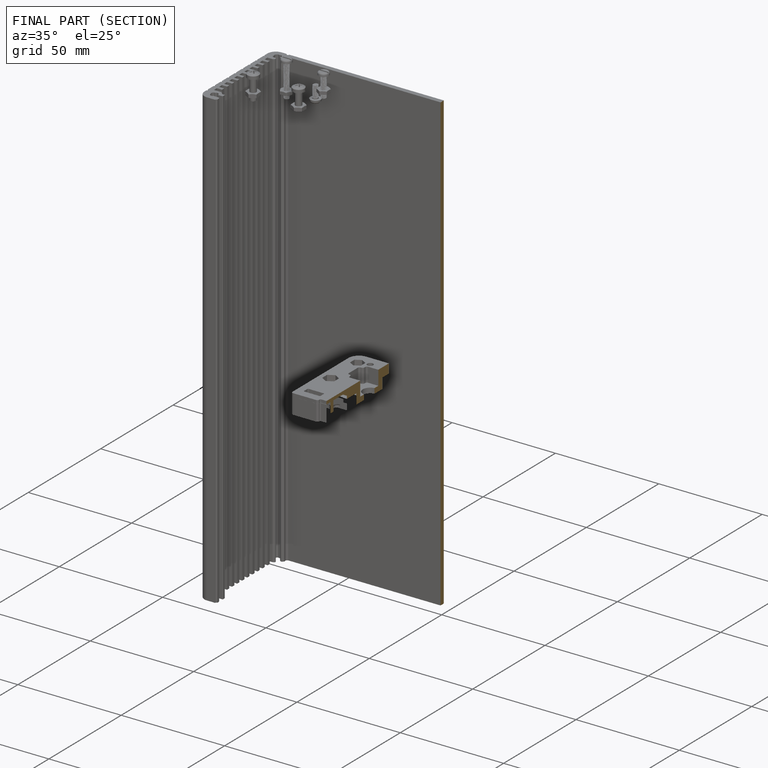
[diagram: finished part — half-section view (interior)]
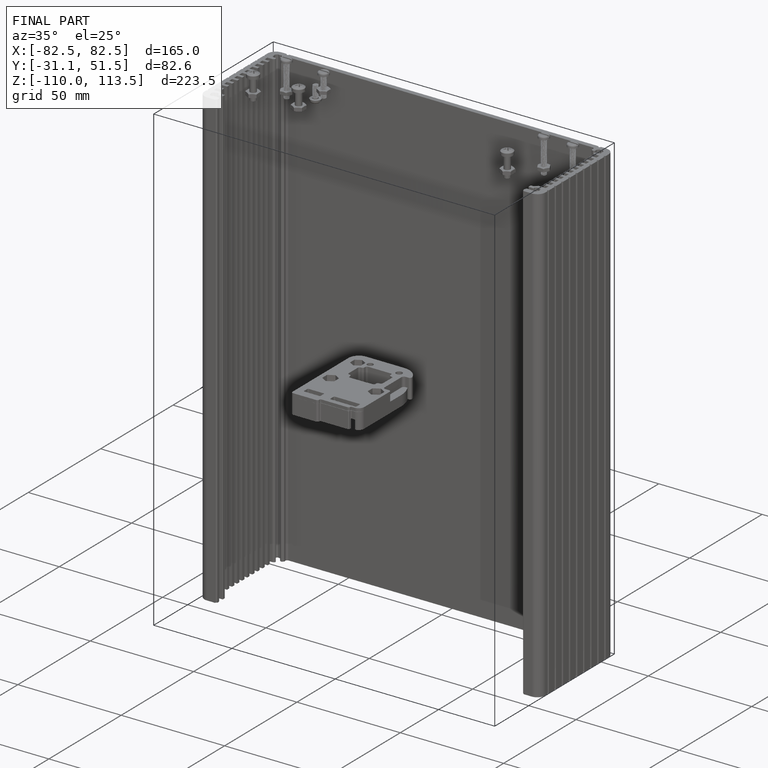
[diagram: finished part — iso view with bounding-box wireframe]
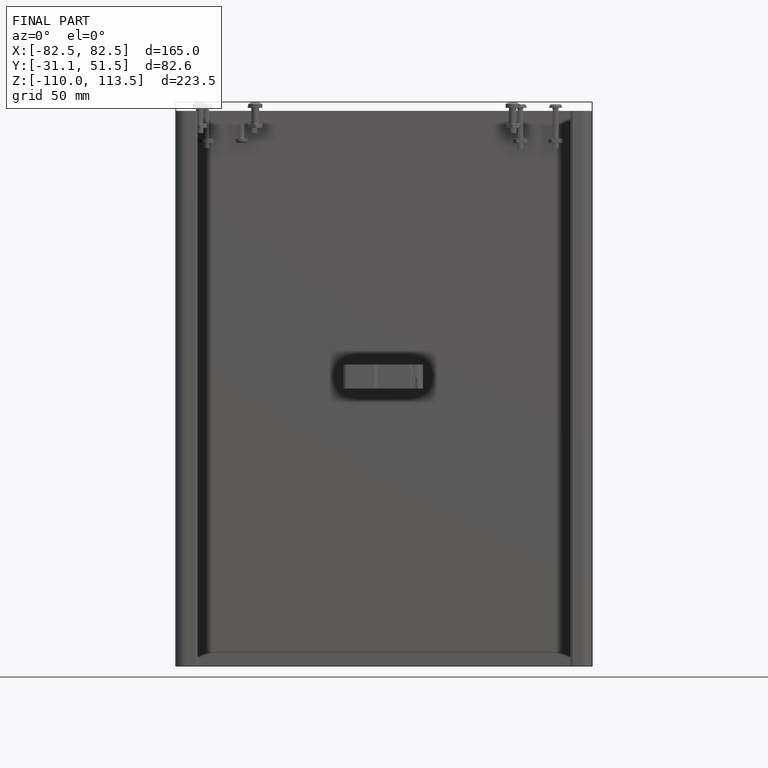
[diagram: finished part — front view with bounding-box wireframe]
